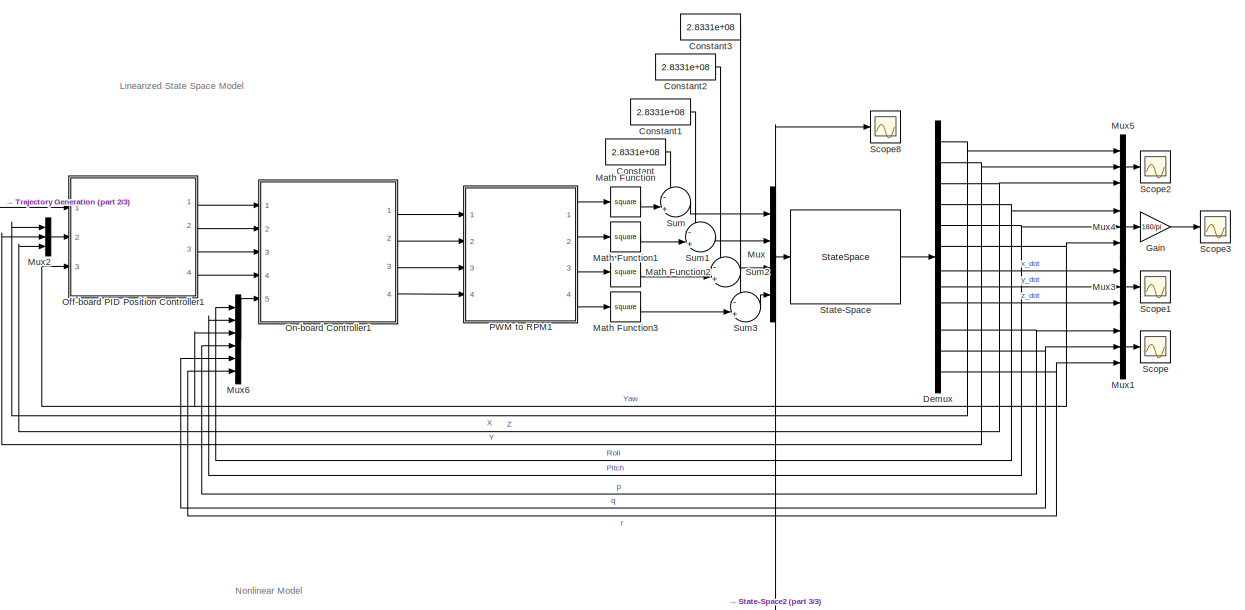
[diagram: root canvas - part 1/3, top center region]
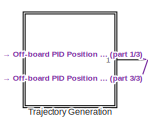
[diagram: root canvas - part 2/3, middle left region]
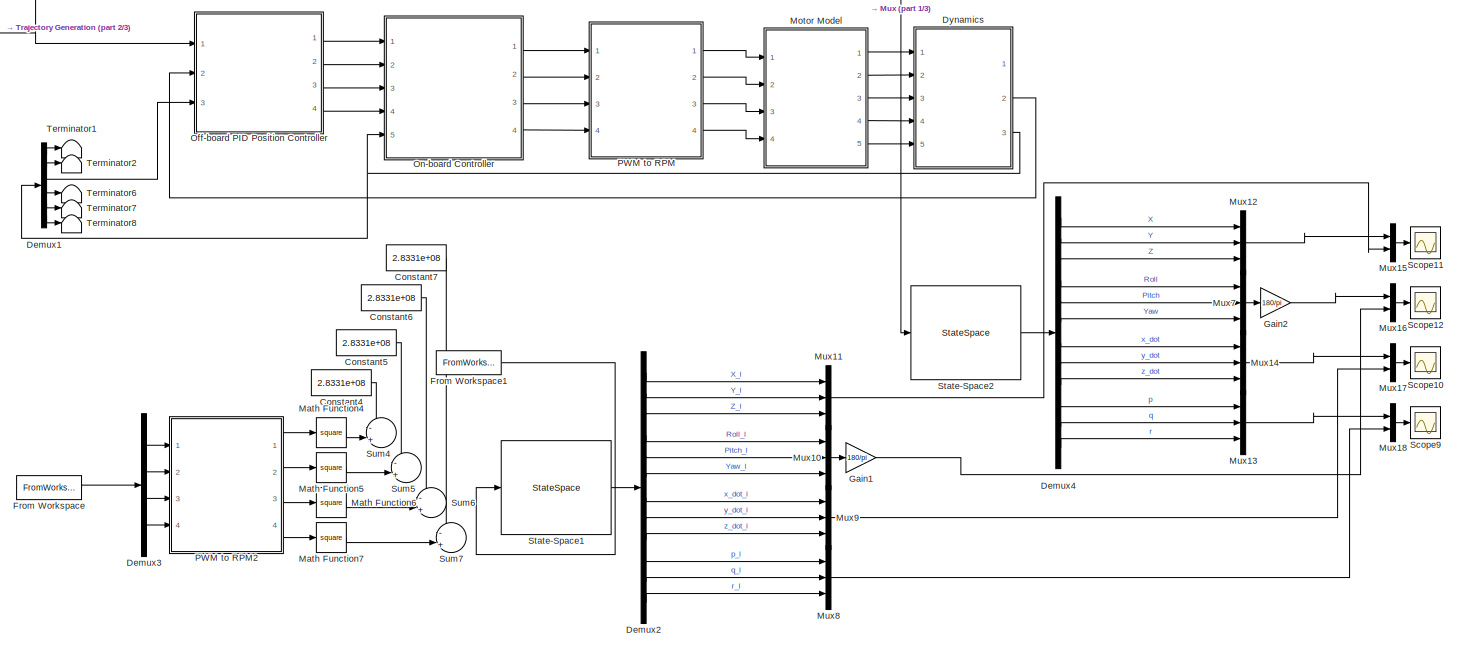
[diagram: root canvas - part 3/3, full width, bottom band]
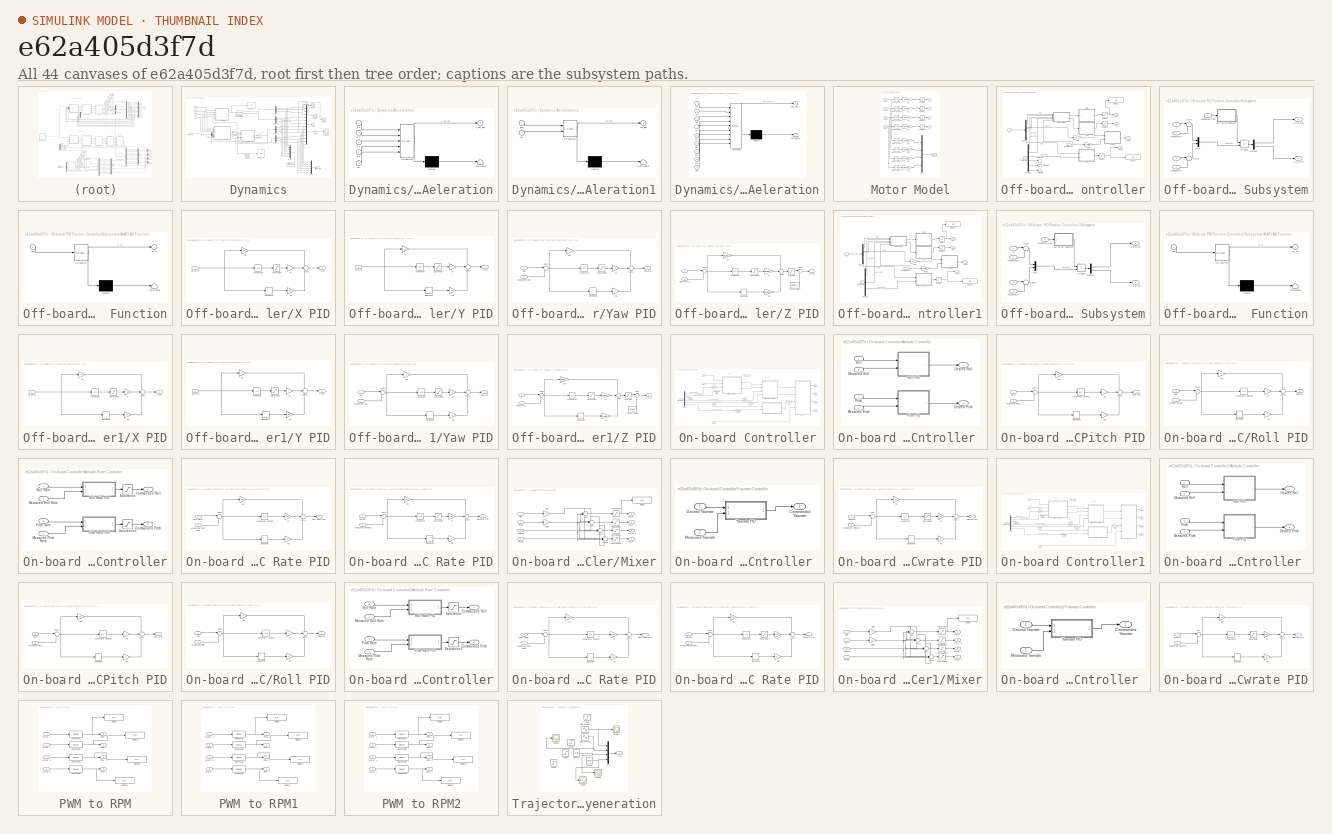
[diagram: thumbnail index - all 44 canvases of the model, root first then tree order]
MODEL slx_e62a405d3f7d
KIND model
CONFIG AbsTol = auto
CONFIG FixedStep = 1/500
CONFIG MaxStep = auto
CONFIG MinStep = 1e-4
CONFIG RelTol = 1e-3
CONFIG SampleTimeConstraint = Unconstrained
CONFIG Solver = ode3
CONFIG SolverMode = Auto
CONFIG SolverName = ode3
CONFIG StartTime = 0.0
CONFIG StopTime = 30
BLOCK [Constant] Constant
  Value = 2.8331e+08
BLOCK [Constant] Constant1
  Value = 2.8331e+08
BLOCK [Constant] Constant2
  Value = 2.8331e+08
BLOCK [Constant] Constant3
  Value = 2.8331e+08
BLOCK [Constant] Constant4
  Commented = on
  Value = 2.8331e+08
BLOCK [Constant] Constant5
  Commented = on
  Value = 2.8331e+08
BLOCK [Constant] Constant6
  Commented = on
  Value = 2.8331e+08
BLOCK [Constant] Constant7
  Commented = on
  Value = 2.8331e+08
BLOCK [Demux] Demux
  DisplayOption = bar
  Outputs = 12
  Ports = [1, 12]
BLOCK [Demux] Demux1
  DisplayOption = bar
  Outputs = 6
  Ports = [1, 6]
BLOCK [Demux] Demux2
  DisplayOption = bar
  Outputs = 12
  Ports = [1, 12]
BLOCK [Demux] Demux3
  Commented = on
  DisplayOption = bar
  Ports = [1, 4]
BLOCK [Demux] Demux4
  DisplayOption = bar
  Outputs = 12
  Ports = [1, 12]
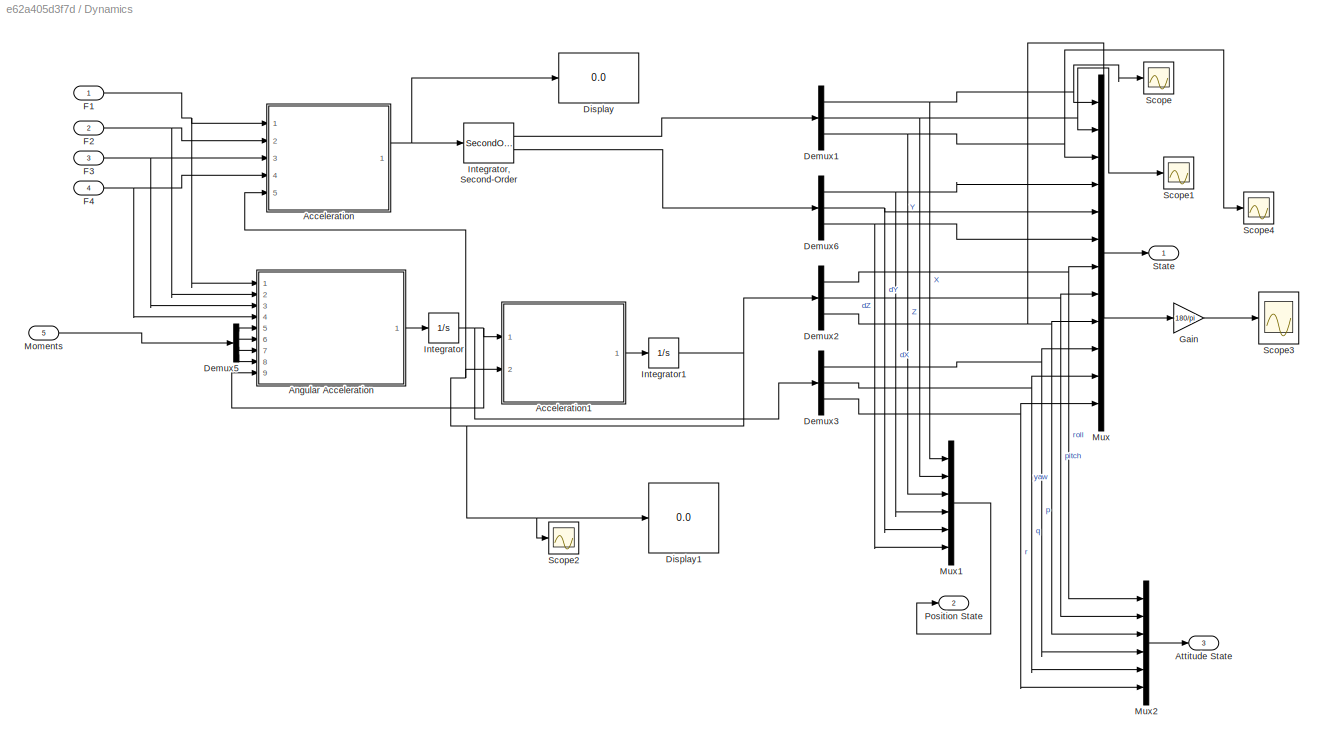
BLOCK [SubSystem] Dynamics
  Ports = [5, 3]
  RequestExecContextInheritance = off
  Variant = off
BLOCK [SubSystem] Dynamics/Acceleration
  ErrorFcn = Stateflow.Translate.translate
  PermitHierarchicalResolution = ParametersOnly
  Ports = [5, 1]
  RequestExecContextInheritance = off
  SFBlockType = MATLAB Function
  TreatAsAtomicUnit = on
  Variant = off
BLOCK [Demux] Dynamics/Acceleration/ Demux 
  Outputs = 1
  Ports = [1, 1]
BLOCK [S-Function] Dynamics/Acceleration/ SFunction 
  EnableBusSupport = on
  FunctionName = sf_sfun
  PortCounts = [5 2]
  Ports = [5, 2]
  SFunctionDeploymentMode = off
  Tag = Stateflow S-Function crazyflie_2015a 2
BLOCK [Terminator] Dynamics/Acceleration/ Terminator 
BLOCK [Inport] Dynamics/Acceleration/F1
  IconDisplay = Port number
BLOCK [Inport] Dynamics/Acceleration/F2
  IconDisplay = Port number
  Port = 2
BLOCK [Inport] Dynamics/Acceleration/F3
  IconDisplay = Port number
  Port = 3
BLOCK [Inport] Dynamics/Acceleration/F4
  IconDisplay = Port number
  Port = 4
BLOCK [Outport] Dynamics/Acceleration/r_dot_dot
  IconDisplay = Port number
BLOCK [Inport] Dynamics/Acceleration/rpy
  IconDisplay = Port number
  Port = 5
BLOCK [SubSystem] Dynamics/Acceleration1
  ErrorFcn = Stateflow.Translate.translate
  PermitHierarchicalResolution = ParametersOnly
  Ports = [2, 1]
  RequestExecContextInheritance = off
  SFBlockType = MATLAB Function
  TreatAsAtomicUnit = on
  Variant = off
BLOCK [Demux] Dynamics/Acceleration1/ Demux 
  Outputs = 1
  Ports = [1, 1]
BLOCK [S-Function] Dynamics/Acceleration1/ SFunction 
  EnableBusSupport = on
  FunctionName = sf_sfun
  PortCounts = [2 2]
  Ports = [2, 2]
  SFunctionDeploymentMode = off
  Tag = Stateflow S-Function crazyflie_2015a 3
BLOCK [Terminator] Dynamics/Acceleration1/ Terminator 
BLOCK [Inport] Dynamics/Acceleration1/pqr
  IconDisplay = Port number
BLOCK [Inport] Dynamics/Acceleration1/rpy
  IconDisplay = Port number
  Port = 2
BLOCK [Outport] Dynamics/Acceleration1/rpy_dot
  IconDisplay = Port number
BLOCK [SubSystem] Dynamics/Angular Acceleration
  ErrorFcn = Stateflow.Translate.translate
  PermitHierarchicalResolution = ParametersOnly
  Ports = [9, 1]
  RequestExecContextInheritance = off
  SFBlockType = MATLAB Function
  TreatAsAtomicUnit = on
  Variant = off
BLOCK [Demux] Dynamics/Angular Acceleration/ Demux 
  Outputs = 1
  Ports = [1, 1]
BLOCK [S-Function] Dynamics/Angular Acceleration/ SFunction 
  EnableBusSupport = on
  FunctionName = sf_sfun
  PortCounts = [9 2]
  Ports = [9, 2]
  SFunctionDeploymentMode = off
  Tag = Stateflow S-Function crazyflie_2015a 1
BLOCK [Terminator] Dynamics/Angular Acceleration/ Terminator 
BLOCK [Inport] Dynamics/Angular Acceleration/F1
  IconDisplay = Port number
BLOCK [Inport] Dynamics/Angular Acceleration/F2
  IconDisplay = Port number
  Port = 2
BLOCK [Inport] Dynamics/Angular Acceleration/F3
  IconDisplay = Port number
  Port = 3
BLOCK [Inport] Dynamics/Angular Acceleration/F4
  IconDisplay = Port number
  Port = 4
BLOCK [Inport] Dynamics/Angular Acceleration/M1
  IconDisplay = Port number
  Port = 5
BLOCK [Inport] Dynamics/Angular Acceleration/M2
  IconDisplay = Port number
  Port = 6
BLOCK [Inport] Dynamics/Angular Acceleration/M3
  IconDisplay = Port number
  Port = 7
BLOCK [Inport] Dynamics/Angular Acceleration/M4
  IconDisplay = Port number
  Port = 8
BLOCK [Inport] Dynamics/Angular Acceleration/pqr
  IconDisplay = Port number
  Port = 9
BLOCK [Outport] Dynamics/Angular Acceleration/pqr_dot_x
  IconDisplay = Port number
BLOCK [Outport] Dynamics/Attitude State
  IconDisplay = Port number
  Port = 3
BLOCK [Demux] Dynamics/Demux1
  DisplayOption = bar
  Outputs = 3
  Ports = [1, 3]
BLOCK [Demux] Dynamics/Demux2
  DisplayOption = bar
  Outputs = 3
  Ports = [1, 3]
BLOCK [Demux] Dynamics/Demux3
  DisplayOption = bar
  Outputs = 3
  Ports = [1, 3]
BLOCK [Demux] Dynamics/Demux5
  DisplayOption = bar
  Ports = [1, 4]
BLOCK [Demux] Dynamics/Demux6
  DisplayOption = bar
  Outputs = 3
  Ports = [1, 3]
BLOCK [Display] Dynamics/Display
  Decimation = 1
  Ports = [1]
BLOCK [Display] Dynamics/Display1
  Decimation = 1
  Ports = [1]
BLOCK [Inport] Dynamics/F1
  IconDisplay = Port number
BLOCK [Inport] Dynamics/F2
  IconDisplay = Port number
  Port = 2
BLOCK [Inport] Dynamics/F3
  IconDisplay = Port number
  Port = 3
BLOCK [Inport] Dynamics/F4
  IconDisplay = Port number
  Port = 4
BLOCK [Gain] Dynamics/Gain
  Gain = 180/pi
  OutDataTypeStr = Inherit: Inherit via internal rule
  ParamDataTypeStr = Inherit: Inherit via internal rule
  SaturateOnIntegerOverflow = off
BLOCK [Integrator] Dynamics/Integrator
  InitialCondition = [0;0;0]
  Ports = [1, 1]
BLOCK [SecondOrderIntegrator] Dynamics/Integrator, Second-Order
  ICDXDT = [0;0;0]
  ICX = [0;0;0]
  LimitDXDT = on
  LimitX = on
  LowerLimitDXDT = -Inf
  LowerLimitX = [-inf,-inf,0]
  Ports = [1, 2]
  StateNameDXDT = ['dx', 'dy', 'dz']
  StateNameX = ['x', 'y', 'z']
  UpperLimitDXDT = Inf
  UpperLimitX = [inf,inf,inf]
BLOCK [Integrator] Dynamics/Integrator1
  InitialCondition = [0;0;0]
  Ports = [1, 1]
BLOCK [Inport] Dynamics/Moments
  IconDisplay = Port number
  Port = 5
BLOCK [Mux] Dynamics/Mux
  DisplayOption = bar
  Inputs = 12
  Ports = [12, 1]
BLOCK [Mux] Dynamics/Mux1
  DisplayOption = bar
  Inputs = 6
  Ports = [6, 1]
BLOCK [Mux] Dynamics/Mux2
  DisplayOption = bar
  Inputs = 6
  Ports = [6, 1]
BLOCK [Outport] Dynamics/Position State
  IconDisplay = Port number
  Port = 2
BLOCK [Scope] Dynamics/Scope
  DataFormat = Array
  Decimation = 1
  Grid = on
  LimitDataPoints = off
  MaxDataPoints = 5000
  Ports = [1]
  SampleInput = off
  SampleTime = -1
  SaveName = x_pos
  SaveToWorkspace = on
  ShowLegends = off
  TickLabels = OneTimeTick
  TimeRange = auto
  YMax = 1.43792
  YMin = -0.15977
  ZoomMode = on
BLOCK [Scope] Dynamics/Scope1
  DataFormat = Array
  Decimation = 1
  Grid = on
  LimitDataPoints = off
  MaxDataPoints = 5000
  Ports = [1]
  SampleInput = off
  SampleTime = -1
  SaveName = y_pos
  SaveToWorkspace = on
  ShowLegends = off
  TickLabels = OneTimeTick
  TimeRange = auto
  YMax = 1.43948
  YMin = -0.15994
  ZoomMode = on
BLOCK [Scope] Dynamics/Scope2
  DataFormat = StructureWithTime
  Decimation = 1
  Grid = on
  LimitDataPoints = off
  MaxDataPoints = 5000
  Ports = [1]
  SampleInput = off
  SampleTime = -1
  SaveName = ScopeData1
  SaveToWorkspace = off
  ShowLegends = off
  TickLabels = OneTimeTick
  TimeRange = auto
  YMax = 0.00059
  YMin = -0.00075
  ZoomMode = on
BLOCK [Scope] Dynamics/Scope3
  DataFormat = Array
  Decimation = 1
  Grid = on
  LimitDataPoints = off
  MaxDataPoints = 5000
  Ports = [1]
  SampleInput = off
  SampleTime = -1
  SaveName = yaw_pos
  SaveToWorkspace = on
  ShowLegends = off
  TickLabels = OneTimeTick
  TimeRange = auto
  YMax = 67.89856
  YMin = -7.58141
  ZoomMode = on
BLOCK [Scope] Dynamics/Scope4
  DataFormat = Array
  Decimation = 1
  Grid = on
  LimitDataPoints = off
  MaxDataPoints = 5000
  Ports = [1]
  SampleInput = off
  SampleTime = -1
  SaveName = z_pos
  SaveToWorkspace = on
  ShowLegends = off
  TickLabels = OneTimeTick
  TimeRange = auto
  YMax = 1.5
  YMin = 0.00000
  ZoomMode = on
BLOCK [Outport] Dynamics/State
  IconDisplay = Port number
BLOCK [FromWorkspace] From Workspace
  Commented = on
  SampleTime = 1/500
  VariableName = Crazyflie_pwm1
  ZeroCross = on
BLOCK [FromWorkspace] From Workspace1
  VariableName = input
  ZeroCross = on
BLOCK [Gain] Gain
  Gain = 180/pi
  OutDataTypeStr = Inherit: Inherit via internal rule
  ParamDataTypeStr = Inherit: Inherit via internal rule
  SaturateOnIntegerOverflow = off
BLOCK [Gain] Gain1
  Gain = 180/pi
  OutDataTypeStr = Inherit: Inherit via internal rule
  ParamDataTypeStr = Inherit: Inherit via internal rule
  SaturateOnIntegerOverflow = off
BLOCK [Gain] Gain2
  Gain = 180/pi
  OutDataTypeStr = Inherit: Inherit via internal rule
  ParamDataTypeStr = Inherit: Inherit via internal rule
  SaturateOnIntegerOverflow = off
BLOCK [Math] Math Function
  Operator = square
  Ports = [1, 1]
BLOCK [Math] Math Function1
  Operator = square
  Ports = [1, 1]
BLOCK [Math] Math Function2
  Operator = square
  Ports = [1, 1]
BLOCK [Math] Math Function3
  Operator = square
  Ports = [1, 1]
BLOCK [Math] Math Function4
  Commented = on
  Operator = square
  Ports = [1, 1]
BLOCK [Math] Math Function5
  Commented = on
  Operator = square
  Ports = [1, 1]
BLOCK [Math] Math Function6
  Commented = on
  Operator = square
  Ports = [1, 1]
BLOCK [Math] Math Function7
  Commented = on
  Operator = square
  Ports = [1, 1]
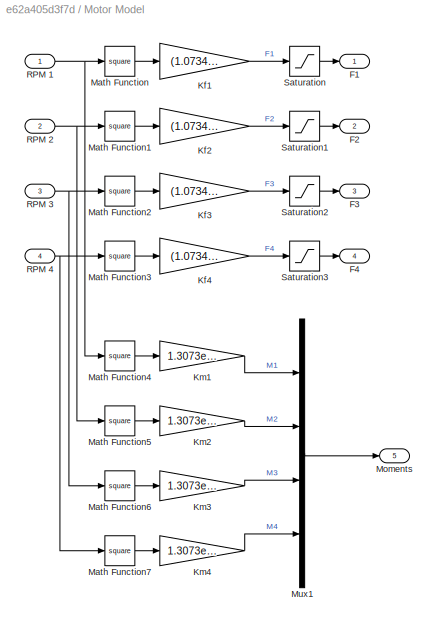
BLOCK [SubSystem] Motor Model
  Ports = [4, 5]
  RequestExecContextInheritance = off
  Variant = off
BLOCK [Outport] Motor Model/F1
  IconDisplay = Port number
BLOCK [Outport] Motor Model/F2
  IconDisplay = Port number
  Port = 2
BLOCK [Outport] Motor Model/F3
  IconDisplay = Port number
  Port = 3
BLOCK [Outport] Motor Model/F4
  IconDisplay = Port number
  Port = 4
BLOCK [Gain] Motor Model/Kf1
  Gain = (1.0734E-9)/4
  OutDataTypeStr = Inherit: Inherit via internal rule
  ParamDataTypeStr = Inherit: Inherit via internal rule
  SaturateOnIntegerOverflow = off
BLOCK [Gain] Motor Model/Kf2
  Gain = (1.0734E-9)/4
  OutDataTypeStr = Inherit: Inherit via internal rule
  ParamDataTypeStr = Inherit: Inherit via internal rule
  SaturateOnIntegerOverflow = off
BLOCK [Gain] Motor Model/Kf3
  Gain = (1.0734E-9)/4
  OutDataTypeStr = Inherit: Inherit via internal rule
  ParamDataTypeStr = Inherit: Inherit via internal rule
  SaturateOnIntegerOverflow = off
BLOCK [Gain] Motor Model/Kf4
  Gain = (1.0734E-9)/4
  OutDataTypeStr = Inherit: Inherit via internal rule
  ParamDataTypeStr = Inherit: Inherit via internal rule
  SaturateOnIntegerOverflow = off
BLOCK [Gain] Motor Model/Km1
  Gain = 1.3073e-10
  OutDataTypeStr = Inherit: Inherit via internal rule
  ParamDataTypeStr = Inherit: Inherit via internal rule
  SaturateOnIntegerOverflow = off
BLOCK [Gain] Motor Model/Km2
  Gain = 1.3073e-10
  OutDataTypeStr = Inherit: Inherit via internal rule
  ParamDataTypeStr = Inherit: Inherit via internal rule
  SaturateOnIntegerOverflow = off
BLOCK [Gain] Motor Model/Km3
  Gain = 1.3073e-10
  OutDataTypeStr = Inherit: Inherit via internal rule
  ParamDataTypeStr = Inherit: Inherit via internal rule
  SaturateOnIntegerOverflow = off
BLOCK [Gain] Motor Model/Km4
  Gain = 1.3073e-10
  OutDataTypeStr = Inherit: Inherit via internal rule
  ParamDataTypeStr = Inherit: Inherit via internal rule
  SaturateOnIntegerOverflow = off
BLOCK [Math] Motor Model/Math Function
  Operator = square
  Ports = [1, 1]
BLOCK [Math] Motor Model/Math Function1
  Operator = square
  Ports = [1, 1]
BLOCK [Math] Motor Model/Math Function2
  Operator = square
  Ports = [1, 1]
BLOCK [Math] Motor Model/Math Function3
  Operator = square
  Ports = [1, 1]
BLOCK [Math] Motor Model/Math Function4
  Operator = square
  Ports = [1, 1]
BLOCK [Math] Motor Model/Math Function5
  Operator = square
  Ports = [1, 1]
BLOCK [Math] Motor Model/Math Function6
  Operator = square
  Ports = [1, 1]
BLOCK [Math] Motor Model/Math Function7
  Operator = square
  Ports = [1, 1]
BLOCK [Outport] Motor Model/Moments
  IconDisplay = Port number
  Port = 5
BLOCK [Mux] Motor Model/Mux1
  DisplayOption = bar
  Ports = [4, 1]
BLOCK [Inport] Motor Model/RPM 1
  IconDisplay = Port number
BLOCK [Inport] Motor Model/RPM 2
  IconDisplay = Port number
  Port = 2
BLOCK [Inport] Motor Model/RPM 3
  IconDisplay = Port number
  Port = 3
BLOCK [Inport] Motor Model/RPM 4
  IconDisplay = Port number
  Port = 4
BLOCK [Saturate] Motor Model/Saturation
  InputPortMap = u0
  LowerLimit = 0
  Ports = [1, 1]
  UpperLimit = .2
BLOCK [Saturate] Motor Model/Saturation1
  InputPortMap = u0
  LowerLimit = 0
  Ports = [1, 1]
  UpperLimit = .2
BLOCK [Saturate] Motor Model/Saturation2
  InputPortMap = u0
  LowerLimit = 0
  Ports = [1, 1]
  UpperLimit = .2
BLOCK [Saturate] Motor Model/Saturation3
  InputPortMap = u0
  LowerLimit = 0
  Ports = [1, 1]
  UpperLimit = .2
BLOCK [Mux] Mux
  DisplayOption = bar
  Ports = [4, 1]
BLOCK [Mux] Mux1
  DisplayOption = bar
  Inputs = 3
  Ports = [3, 1]
BLOCK [Mux] Mux10
  DisplayOption = bar
  Inputs = 3
  Ports = [3, 1]
BLOCK [Mux] Mux11
  DisplayOption = bar
  Inputs = 3
  Ports = [3, 1]
BLOCK [Mux] Mux12
  DisplayOption = bar
  Inputs = 3
  Ports = [3, 1]
BLOCK [Mux] Mux13
  DisplayOption = bar
  Inputs = 3
  Ports = [3, 1]
BLOCK [Mux] Mux14
  DisplayOption = bar
  Inputs = 3
  Ports = [3, 1]
BLOCK [Mux] Mux15
  DisplayOption = bar
  Inputs = 2
  Ports = [2, 1]
BLOCK [Mux] Mux16
  DisplayOption = bar
  Inputs = 2
  Ports = [2, 1]
BLOCK [Mux] Mux17
  DisplayOption = bar
  Inputs = 2
  Ports = [2, 1]
BLOCK [Mux] Mux18
  DisplayOption = bar
  Inputs = 2
  Ports = [2, 1]
BLOCK [Mux] Mux2
  DisplayOption = bar
  Inputs = 3
  Ports = [3, 1]
BLOCK [Mux] Mux3
  DisplayOption = bar
  Inputs = 3
  Ports = [3, 1]
BLOCK [Mux] Mux4
  DisplayOption = bar
  Inputs = 3
  Ports = [3, 1]
BLOCK [Mux] Mux5
  DisplayOption = bar
  Inputs = 3
  Ports = [3, 1]
BLOCK [Mux] Mux6
  DisplayOption = bar
  Inputs = 6
  Ports = [6, 1]
BLOCK [Mux] Mux7
  DisplayOption = bar
  Inputs = 3
  Ports = [3, 1]
BLOCK [Mux] Mux8
  DisplayOption = bar
  Inputs = 3
  Ports = [3, 1]
BLOCK [Mux] Mux9
  DisplayOption = bar
  Inputs = 3
  Ports = [3, 1]
BLOCK [SubSystem] Off-board PID Position Controller
  Ports = [3, 4]
  RequestExecContextInheritance = off
  Variant = off
BLOCK [Demux] Off-board PID Position Controller/Demux
  DisplayOption = bar
  Ports = [1, 4]
BLOCK [Demux] Off-board PID Position Controller/Demux1
  DisplayOption = bar
  Outputs = 6
  Ports = [1, 6]
BLOCK [Display] Off-board PID Position Controller/Display
  Decimation = 1
  Ports = [1]
BLOCK [Display] Off-board PID Position Controller/Display1
  Decimation = 1
  Ports = [1]
BLOCK [Gain] Off-board PID Position Controller/Gain
  OutDataTypeStr = Inherit: Inherit via internal rule
  ParamDataTypeStr = Inherit: Inherit via internal rule
  SaturateOnIntegerOverflow = off
BLOCK [Gain] Off-board PID Position Controller/Gain1
  Gain = 180/pi
  OutDataTypeStr = Inherit: Inherit via internal rule
  ParamDataTypeStr = Inherit: Inherit via internal rule
  SaturateOnIntegerOverflow = off
BLOCK [Inport] Off-board PID Position Controller/Meaured Yaw
  IconDisplay = Port number
  Port = 3
BLOCK [Outport] Off-board PID Position Controller/Pitch
  IconDisplay = Port number
  Port = 2
BLOCK [Inport] Off-board PID Position Controller/Position State
  IconDisplay = Port number
  Port = 2
BLOCK [Outport] Off-board PID Position Controller/Roll
  IconDisplay = Port number
BLOCK [Saturate] Off-board PID Position Controller/Saturation
  InputPortMap = u0
  LowerLimit = 1000
  Ports = [1, 1]
  UpperLimit = 60000
BLOCK [Saturate] Off-board PID Position Controller/Saturation1
  InputPortMap = u0
  LowerLimit = -30
  Ports = [1, 1]
  UpperLimit = 30
BLOCK [Saturate] Off-board PID Position Controller/Saturation2
  InputPortMap = u0
  LowerLimit = -30
  Ports = [1, 1]
  UpperLimit = 30
BLOCK [SubSystem] Off-board PID Position Controller/Subsystem
  Ports = [5, 2]
  RequestExecContextInheritance = off
  Variant = off
BLOCK [Demux] Off-board PID Position Controller/Subsystem/Demux
  DisplayOption = bar
  Outputs = 2
  Ports = [1, 2]
BLOCK [SubSystem] Off-board PID Position Controller/Subsystem/MATLAB Function
  ErrorFcn = Stateflow.Translate.translate
  PermitHierarchicalResolution = ParametersOnly
  Ports = [1, 1]
  RequestExecContextInheritance = off
  SFBlockType = MATLAB Function
  TreatAsAtomicUnit = on
  Variant = off
BLOCK [Demux] Off-board PID Position Controller/Subsystem/MATLAB Function/ Demux 
  Outputs = 1
  Ports = [1, 1]
BLOCK [S-Function] Off-board PID Position Controller/Subsystem/MATLAB Function/ SFunction 
  EnableBusSupport = on
  FunctionName = sf_sfun
  PortCounts = [1 2]
  Ports = [1, 2]
  SFunctionDeploymentMode = off
  Tag = Stateflow S-Function crazyflie_2015a 4
BLOCK [Terminator] Off-board PID Position Controller/Subsystem/MATLAB Function/ Terminator 
BLOCK [Outport] Off-board PID Position Controller/Subsystem/MATLAB Function/R_m
  IconDisplay = Port number
BLOCK [Inport] Off-board PID Position Controller/Subsystem/MATLAB Function/yaw
  IconDisplay = Port number
BLOCK [Inport] Off-board PID Position Controller/Subsystem/Measured X
  IconDisplay = Port number
  Port = 2
BLOCK [Inport] Off-board PID Position Controller/Subsystem/Measured Y
  IconDisplay = Port number
  Port = 4
BLOCK [Inport] Off-board PID Position Controller/Subsystem/Measured Yaw
  IconDisplay = Port number
  Port = 5
BLOCK [Mux] Off-board PID Position Controller/Subsystem/Mux
  DisplayOption = bar
  Inputs = 2
  Ports = [2, 1]
BLOCK [Product] Off-board PID Position Controller/Subsystem/Product
  InputSameDT = off
  Multiplication = Matrix(*)
  OutDataTypeStr = Inherit: Inherit via internal rule
  Ports = [2, 1]
  RndMeth = Floor
  SaturateOnIntegerOverflow = off
BLOCK [Sum] Off-board PID Position Controller/Subsystem/Sum
  IconShape = round
  InputSameDT = off
  Inputs = |+-
  OutDataTypeStr = Inherit: Inherit via internal rule
  Ports = [2, 1]
  SaturateOnIntegerOverflow = off
BLOCK [Sum] Off-board PID Position Controller/Subsystem/Sum1
  IconShape = round
  InputSameDT = off
  Inputs = |+-
  OutDataTypeStr = Inherit: Inherit via internal rule
  Ports = [2, 1]
  SaturateOnIntegerOverflow = off
BLOCK [Inport] Off-board PID Position Controller/Subsystem/X
  IconDisplay = Port number
BLOCK [Outport] Off-board PID Position Controller/Subsystem/Xb Error
  IconDisplay = Port number
BLOCK [Inport] Off-board PID Position Controller/Subsystem/Y
  IconDisplay = Port number
  Port = 3
BLOCK [Outport] Off-board PID Position Controller/Subsystem/Yb Error
  IconDisplay = Port number
  Port = 2
BLOCK [Terminator] Off-board PID Position Controller/Terminator
BLOCK [Terminator] Off-board PID Position Controller/Terminator1
BLOCK [Terminator] Off-board PID Position Controller/Terminator2
BLOCK [Outport] Off-board PID Position Controller/Thrust
  IconDisplay = Port number
  Port = 4
BLOCK [Inport] Off-board PID Position Controller/Traj
  IconDisplay = Port number
BLOCK [SubSystem] Off-board PID Position Controller/X PID
  Ports = [1, 1]
  RequestExecContextInheritance = off
  Variant = off
BLOCK [Derivative] Off-board PID Position Controller/X PID/Derivative
BLOCK [Integrator] Off-board PID Position Controller/X PID/Integrator
  Ports = [1, 1]
BLOCK [Gain] Off-board PID Position Controller/X PID/Kd
  Gain = 10
  OutDataTypeStr = Inherit: Inherit via internal rule
  ParamDataTypeStr = Inherit: Inherit via internal rule
  SaturateOnIntegerOverflow = off
BLOCK [Gain] Off-board PID Position Controller/X PID/Ki
  Gain = 4
  OutDataTypeStr = Inherit: Inherit via internal rule
  ParamDataTypeStr = Inherit: Inherit via internal rule
  SaturateOnIntegerOverflow = off
BLOCK [Gain] Off-board PID Position Controller/X PID/Kp
  Gain = 18
  OutDataTypeStr = Inherit: Inherit via internal rule
  ParamDataTypeStr = Inherit: Inherit via internal rule
  SaturateOnIntegerOverflow = off
BLOCK [Saturate] Off-board PID Position Controller/X PID/Saturation
  InputPortMap = u0
  LowerLimit = -.2
  Ports = [1, 1]
  UpperLimit = .2
BLOCK [Sum] Off-board PID Position Controller/X PID/Sum3
  IconShape = round
  InputSameDT = off
  Inputs = +++
  OutDataTypeStr = Inherit: Inherit via internal rule
  Ports = [3, 1]
  SaturateOnIntegerOverflow = off
BLOCK [Outport] Off-board PID Position Controller/X PID/X PID
  IconDisplay = Port number
BLOCK [Inport] Off-board PID Position Controller/X PID/Xb Error
  IconDisplay = Port number
BLOCK [SubSystem] Off-board PID Position Controller/Y PID
  Ports = [1, 1]
  RequestExecContextInheritance = off
  Variant = off
BLOCK [Derivative] Off-board PID Position Controller/Y PID/Derivative
BLOCK [Integrator] Off-board PID Position Controller/Y PID/Integrator
  Ports = [1, 1]
BLOCK [Gain] Off-board PID Position Controller/Y PID/Kd
  Gain = 10
  OutDataTypeStr = Inherit: Inherit via internal rule
  ParamDataTypeStr = Inherit: Inherit via internal rule
  SaturateOnIntegerOverflow = off
BLOCK [Gain] Off-board PID Position Controller/Y PID/Ki
  Gain = 4
  OutDataTypeStr = Inherit: Inherit via internal rule
  ParamDataTypeStr = Inherit: Inherit via internal rule
  SaturateOnIntegerOverflow = off
BLOCK [Gain] Off-board PID Position Controller/Y PID/Kp
  Gain = 18
  OutDataTypeStr = Inherit: Inherit via internal rule
  ParamDataTypeStr = Inherit: Inherit via internal rule
  SaturateOnIntegerOverflow = off
BLOCK [Saturate] Off-board PID Position Controller/Y PID/Saturation
  InputPortMap = u0
  LowerLimit = -.2
  Ports = [1, 1]
  UpperLimit = .2
BLOCK [Sum] Off-board PID Position Controller/Y PID/Sum3
  IconShape = round
  InputSameDT = off
  Inputs = +++
  OutDataTypeStr = Inherit: Inherit via internal rule
  Ports = [3, 1]
  SaturateOnIntegerOverflow = off
BLOCK [Outport] Off-board PID Position Controller/Y PID/Y PID
  IconDisplay = Port number
BLOCK [Inport] Off-board PID Position Controller/Y PID/Yb Error
  IconDisplay = Port number
BLOCK [SubSystem] Off-board PID Position Controller/Yaw PID
  Ports = [2, 1]
  RequestExecContextInheritance = off
  Variant = off
BLOCK [Derivative] Off-board PID Position Controller/Yaw PID/Derivative
BLOCK [Integrator] Off-board PID Position Controller/Yaw PID/Integrator
  Ports = [1, 1]
BLOCK [Gain] Off-board PID Position Controller/Yaw PID/Kd
  OutDataTypeStr = Inherit: Inherit via internal rule
  ParamDataTypeStr = Inherit: Inherit via internal rule
  SaturateOnIntegerOverflow = off
BLOCK [Gain] Off-board PID Position Controller/Yaw PID/Ki
  Gain = 0
  OutDataTypeStr = Inherit: Inherit via internal rule
  ParamDataTypeStr = Inherit: Inherit via internal rule
  SaturateOnIntegerOverflow = off
BLOCK [Gain] Off-board PID Position Controller/Yaw PID/Kp
  Gain = 3
  OutDataTypeStr = Inherit: Inherit via internal rule
  ParamDataTypeStr = Inherit: Inherit via internal rule
  SaturateOnIntegerOverflow = off
BLOCK [Inport] Off-board PID Position Controller/Yaw PID/Measured Yaw
  IconDisplay = Port number
  Port = 2
BLOCK [Saturate] Off-board PID Position Controller/Yaw PID/Saturation
  InputPortMap = u0
  LowerLimit = -.2
  Ports = [1, 1]
  UpperLimit = .2
BLOCK [Sum] Off-board PID Position Controller/Yaw PID/Sum2
  IconShape = round
  InputSameDT = off
  Inputs = |+-
  OutDataTypeStr = Inherit: Inherit via internal rule
  Ports = [2, 1]
  SaturateOnIntegerOverflow = off
BLOCK [Sum] Off-board PID Position Controller/Yaw PID/Sum3
  IconShape = round
  InputSameDT = off
  Inputs = +++
  OutDataTypeStr = Inherit: Inherit via internal rule
  Ports = [3, 1]
  SaturateOnIntegerOverflow = off
BLOCK [Inport] Off-board PID Position Controller/Yaw PID/Yaw
  IconDisplay = Port number
BLOCK [Outport] Off-board PID Position Controller/Yaw PID/Yaw PID
  IconDisplay = Port number
BLOCK [Outport] Off-board PID Position Controller/Yawrate
  IconDisplay = Port number
  Port = 3
BLOCK [SubSystem] Off-board PID Position Controller/Z PID
  Ports = [2, 1]
  RequestExecContextInheritance = off
  Variant = off
BLOCK [Derivative] Off-board PID Position Controller/Z PID/Derivative
BLOCK [Integrator] Off-board PID Position Controller/Z PID/Integrator
  Ports = [1, 1]
BLOCK [Gain] Off-board PID Position Controller/Z PID/Kd
  Gain = 40000
  OutDataTypeStr = Inherit: Inherit via internal rule
  ParamDataTypeStr = Inherit: Inherit via internal rule
  SaturateOnIntegerOverflow = off
BLOCK [Gain] Off-board PID Position Controller/Z PID/Ki
  Gain = 10000
  OutDataTypeStr = Inherit: Inherit via internal rule
  ParamDataTypeStr = Inherit: Inherit via internal rule
  SaturateOnIntegerOverflow = off
BLOCK [Gain] Off-board PID Position Controller/Z PID/Kp
  Gain = 50000
  OutDataTypeStr = Inherit: Inherit via internal rule
  ParamDataTypeStr = Inherit: Inherit via internal rule
  SaturateOnIntegerOverflow = off
BLOCK [Inport] Off-board PID Position Controller/Z PID/Measured Z
  IconDisplay = Port number
  Port = 2
BLOCK [Saturate] Off-board PID Position Controller/Z PID/PID Limit
  InputPortMap = u0
  LowerLimit = -25000
  Ports = [1, 1]
  UpperLimit = 25000
BLOCK [Saturate] Off-board PID Position Controller/Z PID/Saturation
  InputPortMap = u0
  LowerLimit = -10
  Ports = [1, 1]
  UpperLimit = 10
BLOCK [Sum] Off-board PID Position Controller/Z PID/Sum
  IconShape = round
  InputSameDT = off
  Inputs = |++
  OutDataTypeStr = Inherit: Inherit via internal rule
  Ports = [2, 1]
  SaturateOnIntegerOverflow = off
BLOCK [Sum] Off-board PID Position Controller/Z PID/Sum2
  IconShape = round
  InputSameDT = off
  Inputs = |+-
  OutDataTypeStr = Inherit: Inherit via internal rule
  Ports = [2, 1]
  SaturateOnIntegerOverflow = off
BLOCK [Sum] Off-board PID Position Controller/Z PID/Sum3
  IconShape = round
  InputSameDT = off
  Inputs = +++
  OutDataTypeStr = Inherit: Inherit via internal rule
  Ports = [3, 1]
  SaturateOnIntegerOverflow = off
BLOCK [Constant] Off-board PID Position Controller/Z PID/Thrust Base
  Value = 35125.3
BLOCK [Inport] Off-board PID Position Controller/Z PID/Z
  IconDisplay = Port number
BLOCK [Outport] Off-board PID Position Controller/Z PID/Z PID
  IconDisplay = Port number
BLOCK [SubSystem] Off-board PID Position Controller1
  Ports = [3, 4]
  RequestExecContextInheritance = off
  Variant = off
BLOCK [Demux] Off-board PID Position Controller1/Demux
  DisplayOption = bar
  Ports = [1, 4]
BLOCK [Demux] Off-board PID Position Controller1/Demux1
  DisplayOption = bar
  Outputs = 3
  Ports = [1, 3]
BLOCK [Display] Off-board PID Position Controller1/Display
  Decimation = 1
  Ports = [1]
BLOCK [Display] Off-board PID Position Controller1/Display1
  Decimation = 1
  Ports = [1]
BLOCK [Gain] Off-board PID Position Controller1/Gain
  OutDataTypeStr = Inherit: Inherit via internal rule
  ParamDataTypeStr = Inherit: Inherit via internal rule
  SaturateOnIntegerOverflow = off
BLOCK [Gain] Off-board PID Position Controller1/Gain1
  Gain = 180/pi
  OutDataTypeStr = Inherit: Inherit via internal rule
  ParamDataTypeStr = Inherit: Inherit via internal rule
  SaturateOnIntegerOverflow = off
BLOCK [Inport] Off-board PID Position Controller1/Meaured Yaw
  IconDisplay = Port number
  Port = 3
BLOCK [Outport] Off-board PID Position Controller1/Pitch
  IconDisplay = Port number
  Port = 2
BLOCK [Inport] Off-board PID Position Controller1/Position State
  IconDisplay = Port number
  Port = 2
BLOCK [Outport] Off-board PID Position Controller1/Roll
  IconDisplay = Port number
BLOCK [Saturate] Off-board PID Position Controller1/Saturation
  InputPortMap = u0
  LowerLimit = 1000
  Ports = [1, 1]
  UpperLimit = 60000
BLOCK [Saturate] Off-board PID Position Controller1/Saturation1
  InputPortMap = u0
  LowerLimit = -30
  Ports = [1, 1]
  UpperLimit = 30
BLOCK [Saturate] Off-board PID Position Controller1/Saturation2
  InputPortMap = u0
  LowerLimit = -30
  Ports = [1, 1]
  UpperLimit = 30
BLOCK [SubSystem] Off-board PID Position Controller1/Subsystem
  Ports = [5, 2]
  RequestExecContextInheritance = off
  Variant = off
BLOCK [Demux] Off-board PID Position Controller1/Subsystem/Demux
  DisplayOption = bar
  Outputs = 2
  Ports = [1, 2]
BLOCK [SubSystem] Off-board PID Position Controller1/Subsystem/MATLAB Function
  ErrorFcn = Stateflow.Translate.translate
  PermitHierarchicalResolution = ParametersOnly
  Ports = [1, 1]
  RequestExecContextInheritance = off
  SFBlockType = MATLAB Function
  TreatAsAtomicUnit = on
  Variant = off
BLOCK [Demux] Off-board PID Position Controller1/Subsystem/MATLAB Function/ Demux 
  Outputs = 1
  Ports = [1, 1]
BLOCK [S-Function] Off-board PID Position Controller1/Subsystem/MATLAB Function/ SFunction 
  EnableBusSupport = on
  FunctionName = sf_sfun
  PortCounts = [1 2]
  Ports = [1, 2]
  SFunctionDeploymentMode = off
  Tag = Stateflow S-Function crazyflie_2015a 5
BLOCK [Terminator] Off-board PID Position Controller1/Subsystem/MATLAB Function/ Terminator 
BLOCK [Outport] Off-board PID Position Controller1/Subsystem/MATLAB Function/R_m
  IconDisplay = Port number
BLOCK [Inport] Off-board PID Position Controller1/Subsystem/MATLAB Function/yaw
  IconDisplay = Port number
BLOCK [Inport] Off-board PID Position Controller1/Subsystem/Measured X
  IconDisplay = Port number
  Port = 2
BLOCK [Inport] Off-board PID Position Controller1/Subsystem/Measured Y
  IconDisplay = Port number
  Port = 4
BLOCK [Inport] Off-board PID Position Controller1/Subsystem/Measured Yaw
  IconDisplay = Port number
  Port = 5
BLOCK [Mux] Off-board PID Position Controller1/Subsystem/Mux
  DisplayOption = bar
  Inputs = 2
  Ports = [2, 1]
BLOCK [Product] Off-board PID Position Controller1/Subsystem/Product
  InputSameDT = off
  Multiplication = Matrix(*)
  OutDataTypeStr = Inherit: Inherit via internal rule
  Ports = [2, 1]
  RndMeth = Floor
  SaturateOnIntegerOverflow = off
BLOCK [Sum] Off-board PID Position Controller1/Subsystem/Sum
  IconShape = round
  InputSameDT = off
  Inputs = |+-
  OutDataTypeStr = Inherit: Inherit via internal rule
  Ports = [2, 1]
  SaturateOnIntegerOverflow = off
BLOCK [Sum] Off-board PID Position Controller1/Subsystem/Sum1
  IconShape = round
  InputSameDT = off
  Inputs = |+-
  OutDataTypeStr = Inherit: Inherit via internal rule
  Ports = [2, 1]
  SaturateOnIntegerOverflow = off
BLOCK [Inport] Off-board PID Position Controller1/Subsystem/X
  IconDisplay = Port number
BLOCK [Outport] Off-board PID Position Controller1/Subsystem/Xb Error
  IconDisplay = Port number
BLOCK [Inport] Off-board PID Position Controller1/Subsystem/Y
  IconDisplay = Port number
  Port = 3
BLOCK [Outport] Off-board PID Position Controller1/Subsystem/Yb Error
  IconDisplay = Port number
  Port = 2
BLOCK [Outport] Off-board PID Position Controller1/Thrust
  IconDisplay = Port number
  Port = 4
BLOCK [Inport] Off-board PID Position Controller1/Traj
  IconDisplay = Port number
BLOCK [SubSystem] Off-board PID Position Controller1/X PID
  Ports = [1, 1]
  RequestExecContextInheritance = off
  Variant = off
BLOCK [Derivative] Off-board PID Position Controller1/X PID/Derivative
BLOCK [Integrator] Off-board PID Position Controller1/X PID/Integrator
  Ports = [1, 1]
BLOCK [Gain] Off-board PID Position Controller1/X PID/Kd
  Gain = 10
  OutDataTypeStr = Inherit: Inherit via internal rule
  ParamDataTypeStr = Inherit: Inherit via internal rule
  SaturateOnIntegerOverflow = off
BLOCK [Gain] Off-board PID Position Controller1/X PID/Ki
  Gain = 4
  OutDataTypeStr = Inherit: Inherit via internal rule
  ParamDataTypeStr = Inherit: Inherit via internal rule
  SaturateOnIntegerOverflow = off
BLOCK [Gain] Off-board PID Position Controller1/X PID/Kp
  Gain = 18
  OutDataTypeStr = Inherit: Inherit via internal rule
  ParamDataTypeStr = Inherit: Inherit via internal rule
  SaturateOnIntegerOverflow = off
BLOCK [Saturate] Off-board PID Position Controller1/X PID/Saturation
  InputPortMap = u0
  LowerLimit = -.2
  Ports = [1, 1]
  UpperLimit = .2
BLOCK [Sum] Off-board PID Position Controller1/X PID/Sum3
  IconShape = round
  InputSameDT = off
  Inputs = +++
  OutDataTypeStr = Inherit: Inherit via internal rule
  Ports = [3, 1]
  SaturateOnIntegerOverflow = off
BLOCK [Outport] Off-board PID Position Controller1/X PID/X PID
  IconDisplay = Port number
BLOCK [Inport] Off-board PID Position Controller1/X PID/Xb Error
  IconDisplay = Port number
BLOCK [SubSystem] Off-board PID Position Controller1/Y PID
  Ports = [1, 1]
  RequestExecContextInheritance = off
  Variant = off
BLOCK [Derivative] Off-board PID Position Controller1/Y PID/Derivative
BLOCK [Integrator] Off-board PID Position Controller1/Y PID/Integrator
  Ports = [1, 1]
BLOCK [Gain] Off-board PID Position Controller1/Y PID/Kd
  Gain = 10
  OutDataTypeStr = Inherit: Inherit via internal rule
  ParamDataTypeStr = Inherit: Inherit via internal rule
  SaturateOnIntegerOverflow = off
BLOCK [Gain] Off-board PID Position Controller1/Y PID/Ki
  Gain = 4
  OutDataTypeStr = Inherit: Inherit via internal rule
  ParamDataTypeStr = Inherit: Inherit via internal rule
  SaturateOnIntegerOverflow = off
BLOCK [Gain] Off-board PID Position Controller1/Y PID/Kp
  Gain = 18
  OutDataTypeStr = Inherit: Inherit via internal rule
  ParamDataTypeStr = Inherit: Inherit via internal rule
  SaturateOnIntegerOverflow = off
BLOCK [Saturate] Off-board PID Position Controller1/Y PID/Saturation
  InputPortMap = u0
  LowerLimit = -.2
  Ports = [1, 1]
  UpperLimit = .2
BLOCK [Sum] Off-board PID Position Controller1/Y PID/Sum3
  IconShape = round
  InputSameDT = off
  Inputs = +++
  OutDataTypeStr = Inherit: Inherit via internal rule
  Ports = [3, 1]
  SaturateOnIntegerOverflow = off
BLOCK [Outport] Off-board PID Position Controller1/Y PID/Y PID
  IconDisplay = Port number
BLOCK [Inport] Off-board PID Position Controller1/Y PID/Yb Error
  IconDisplay = Port number
BLOCK [SubSystem] Off-board PID Position Controller1/Yaw PID
  Ports = [2, 1]
  RequestExecContextInheritance = off
  Variant = off
BLOCK [Derivative] Off-board PID Position Controller1/Yaw PID/Derivative
BLOCK [Integrator] Off-board PID Position Controller1/Yaw PID/Integrator
  Ports = [1, 1]
BLOCK [Gain] Off-board PID Position Controller1/Yaw PID/Kd
  OutDataTypeStr = Inherit: Inherit via internal rule
  ParamDataTypeStr = Inherit: Inherit via internal rule
  SaturateOnIntegerOverflow = off
BLOCK [Gain] Off-board PID Position Controller1/Yaw PID/Ki
  Gain = 0
  OutDataTypeStr = Inherit: Inherit via internal rule
  ParamDataTypeStr = Inherit: Inherit via internal rule
  SaturateOnIntegerOverflow = off
BLOCK [Gain] Off-board PID Position Controller1/Yaw PID/Kp
  Gain = 3
  OutDataTypeStr = Inherit: Inherit via internal rule
  ParamDataTypeStr = Inherit: Inherit via internal rule
  SaturateOnIntegerOverflow = off
BLOCK [Inport] Off-board PID Position Controller1/Yaw PID/Measured Yaw
  IconDisplay = Port number
  Port = 2
BLOCK [Saturate] Off-board PID Position Controller1/Yaw PID/Saturation
  InputPortMap = u0
  LowerLimit = -.2
  Ports = [1, 1]
  UpperLimit = .2
BLOCK [Sum] Off-board PID Position Controller1/Yaw PID/Sum2
  IconShape = round
  InputSameDT = off
  Inputs = |+-
  OutDataTypeStr = Inherit: Inherit via internal rule
  Ports = [2, 1]
  SaturateOnIntegerOverflow = off
BLOCK [Sum] Off-board PID Position Controller1/Yaw PID/Sum3
  IconShape = round
  InputSameDT = off
  Inputs = +++
  OutDataTypeStr = Inherit: Inherit via internal rule
  Ports = [3, 1]
  SaturateOnIntegerOverflow = off
BLOCK [Inport] Off-board PID Position Controller1/Yaw PID/Yaw
  IconDisplay = Port number
BLOCK [Outport] Off-board PID Position Controller1/Yaw PID/Yaw PID
  IconDisplay = Port number
BLOCK [Outport] Off-board PID Position Controller1/Yawrate
  IconDisplay = Port number
  Port = 3
BLOCK [SubSystem] Off-board PID Position Controller1/Z PID
  Ports = [2, 1]
  RequestExecContextInheritance = off
  Variant = off
BLOCK [Derivative] Off-board PID Position Controller1/Z PID/Derivative
BLOCK [Integrator] Off-board PID Position Controller1/Z PID/Integrator
  Ports = [1, 1]
BLOCK [Gain] Off-board PID Position Controller1/Z PID/Kd
  Gain = 40000
  OutDataTypeStr = Inherit: Inherit via internal rule
  ParamDataTypeStr = Inherit: Inherit via internal rule
  SaturateOnIntegerOverflow = off
BLOCK [Gain] Off-board PID Position Controller1/Z PID/Ki
  Gain = 10000
  OutDataTypeStr = Inherit: Inherit via internal rule
  ParamDataTypeStr = Inherit: Inherit via internal rule
  SaturateOnIntegerOverflow = off
BLOCK [Gain] Off-board PID Position Controller1/Z PID/Kp
  Gain = 50000
  OutDataTypeStr = Inherit: Inherit via internal rule
  ParamDataTypeStr = Inherit: Inherit via internal rule
  SaturateOnIntegerOverflow = off
BLOCK [Inport] Off-board PID Position Controller1/Z PID/Measured Z
  IconDisplay = Port number
  Port = 2
BLOCK [Saturate] Off-board PID Position Controller1/Z PID/PID Limit
  InputPortMap = u0
  LowerLimit = -25000
  Ports = [1, 1]
  UpperLimit = 25000
BLOCK [Saturate] Off-board PID Position Controller1/Z PID/Saturation
  InputPortMap = u0
  LowerLimit = -10
  Ports = [1, 1]
  UpperLimit = 10
BLOCK [Sum] Off-board PID Position Controller1/Z PID/Sum
  IconShape = round
  InputSameDT = off
  Inputs = |++
  OutDataTypeStr = Inherit: Inherit via internal rule
  Ports = [2, 1]
  SaturateOnIntegerOverflow = off
BLOCK [Sum] Off-board PID Position Controller1/Z PID/Sum2
  IconShape = round
  InputSameDT = off
  Inputs = |+-
  OutDataTypeStr = Inherit: Inherit via internal rule
  Ports = [2, 1]
  SaturateOnIntegerOverflow = off
BLOCK [Sum] Off-board PID Position Controller1/Z PID/Sum3
  IconShape = round
  InputSameDT = off
  Inputs = +++
  OutDataTypeStr = Inherit: Inherit via internal rule
  Ports = [3, 1]
  SaturateOnIntegerOverflow = off
BLOCK [Constant] Off-board PID Position Controller1/Z PID/Thrust Base
  Value = 35125.3
BLOCK [Inport] Off-board PID Position Controller1/Z PID/Z
  IconDisplay = Port number
BLOCK [Outport] Off-board PID Position Controller1/Z PID/Z PID
  IconDisplay = Port number
BLOCK [SubSystem] On-board Controller
  Ports = [5, 4]
  RequestExecContextInheritance = off
  Variant = off
BLOCK [SubSystem] On-board Controller/Attitude Controller 
  Ports = [4, 2]
  RequestExecContextInheritance = off
  Variant = off
BLOCK [Outport] On-board Controller/Attitude Controller /Desired Pitch 
  IconDisplay = Port number
  Port = 2
BLOCK [Outport] On-board Controller/Attitude Controller /Desired Roll
  IconDisplay = Port number
BLOCK [Inport] On-board Controller/Attitude Controller /Measured Pitch
  IconDisplay = Port number
  Port = 4
BLOCK [Inport] On-board Controller/Attitude Controller /Measured Roll
  IconDisplay = Port number
  Port = 3
BLOCK [Inport] On-board Controller/Attitude Controller /Pitch
  IconDisplay = Port number
  Port = 2
BLOCK [SubSystem] On-board Controller/Attitude Controller /Pitch PID
  Ports = [2, 1]
  RequestExecContextInheritance = off
  Variant = off
BLOCK [Derivative] On-board Controller/Attitude Controller /Pitch PID/Derivative
BLOCK [Integrator] On-board Controller/Attitude Controller /Pitch PID/Integrator Limited
  LimitOutput = on
  LowerSaturationLimit = -20
  Ports = [1, 1]
  UpperSaturationLimit = 20
BLOCK [Gain] On-board Controller/Attitude Controller /Pitch PID/Kd1
  Gain = 0
  OutDataTypeStr = Inherit: Inherit via internal rule
  ParamDataTypeStr = Inherit: Inherit via internal rule
  SaturateOnIntegerOverflow = off
BLOCK [Gain] On-board Controller/Attitude Controller /Pitch PID/Ki1
  Gain = 4
  OutDataTypeStr = Inherit: Inherit via internal rule
  ParamDataTypeStr = Inherit: Inherit via internal rule
  SaturateOnIntegerOverflow = off
BLOCK [Gain] On-board Controller/Attitude Controller /Pitch PID/Kp1
  Gain = 10
  OutDataTypeStr = Inherit: Inherit via internal rule
  ParamDataTypeStr = Inherit: Inherit via internal rule
  SaturateOnIntegerOverflow = off
BLOCK [Inport] On-board Controller/Attitude Controller /Pitch PID/Measured Pitch
  IconDisplay = Port number
  Port = 2
BLOCK [Inport] On-board Controller/Attitude Controller /Pitch PID/Pitch
  IconDisplay = Port number
BLOCK [Outport] On-board Controller/Attitude Controller /Pitch PID/Pitch PID
  IconDisplay = Port number
BLOCK [Sum] On-board Controller/Attitude Controller /Pitch PID/Sum1
  IconShape = round
  InputSameDT = off
  Inputs = |+-
  OutDataTypeStr = Inherit: Inherit via internal rule
  Ports = [2, 1]
  SaturateOnIntegerOverflow = off
BLOCK [Sum] On-board Controller/Attitude Controller /Pitch PID/Sum6
  IconShape = round
  InputSameDT = off
  Inputs = +++
  OutDataTypeStr = Inherit: Inherit via internal rule
  Ports = [3, 1]
  SaturateOnIntegerOverflow = off
BLOCK [Inport] On-board Controller/Attitude Controller /Roll
  IconDisplay = Port number
BLOCK [SubSystem] On-board Controller/Attitude Controller /Roll PID
  Ports = [2, 1]
  RequestExecContextInheritance = off
  Variant = off
BLOCK [Derivative] On-board Controller/Attitude Controller /Roll PID/Derivative
BLOCK [Integrator] On-board Controller/Attitude Controller /Roll PID/Integrator Limited
  LimitOutput = on
  LowerSaturationLimit = -20
  Ports = [1, 1]
  UpperSaturationLimit = 20
BLOCK [Gain] On-board Controller/Attitude Controller /Roll PID/Kd
  Gain = 0
  OutDataTypeStr = Inherit: Inherit via internal rule
  ParamDataTypeStr = Inherit: Inherit via internal rule
  SaturateOnIntegerOverflow = off
BLOCK [Gain] On-board Controller/Attitude Controller /Roll PID/Ki
  Gain = 4
  OutDataTypeStr = Inherit: Inherit via internal rule
  ParamDataTypeStr = Inherit: Inherit via internal rule
  SaturateOnIntegerOverflow = off
BLOCK [Gain] On-board Controller/Attitude Controller /Roll PID/Kp
  Gain = 10
  OutDataTypeStr = Inherit: Inherit via internal rule
  ParamDataTypeStr = Inherit: Inherit via internal rule
  SaturateOnIntegerOverflow = off
BLOCK [Inport] On-board Controller/Attitude Controller /Roll PID/Measured Roll
  IconDisplay = Port number
  Port = 2
BLOCK [Inport] On-board Controller/Attitude Controller /Roll PID/Roll
  IconDisplay = Port number
BLOCK [Outport] On-board Controller/Attitude Controller /Roll PID/Roll PID
  IconDisplay = Port number
BLOCK [Sum] On-board Controller/Attitude Controller /Roll PID/Sum2
  IconShape = round
  InputSameDT = off
  Inputs = |+-
  OutDataTypeStr = Inherit: Inherit via internal rule
  Ports = [2, 1]
  SaturateOnIntegerOverflow = off
BLOCK [Sum] On-board Controller/Attitude Controller /Roll PID/Sum3
  IconShape = round
  InputSameDT = off
  Inputs = +++
  OutDataTypeStr = Inherit: Inherit via internal rule
  Ports = [3, 1]
  SaturateOnIntegerOverflow = off
BLOCK [SubSystem] On-board Controller/Attitude Rate Controller
  Ports = [4, 2]
  RequestExecContextInheritance = off
  Variant = off
BLOCK [Outport] On-board Controller/Attitude Rate Controller/Commanded Pitch
  IconDisplay = Port number
  Port = 2
BLOCK [Outport] On-board Controller/Attitude Rate Controller/Commanded Roll
  IconDisplay = Port number
BLOCK [Inport] On-board Controller/Attitude Rate Controller/Measured Pitch Rate
  IconDisplay = Port number
  Port = 4
BLOCK [Inport] On-board Controller/Attitude Rate Controller/Measured Roll Rate
  IconDisplay = Port number
  Port = 3
BLOCK [Inport] On-board Controller/Attitude Rate Controller/Pitch Rate
  IconDisplay = Port number
  Port = 2
BLOCK [SubSystem] On-board Controller/Attitude Rate Controller/Pitch Rate PID
  Ports = [2, 1]
  RequestExecContextInheritance = off
  Variant = off
BLOCK [Derivative] On-board Controller/Attitude Rate Controller/Pitch Rate PID/Derivative
BLOCK [Integrator] On-board Controller/Attitude Rate Controller/Pitch Rate PID/Integrator Limited
  LimitOutput = on
  LowerSaturationLimit = -33.3
  Ports = [1, 1]
  UpperSaturationLimit = 33.3
BLOCK [Gain] On-board Controller/Attitude Rate Controller/Pitch Rate PID/Kd
  Gain = 2.5
  OutDataTypeStr = Inherit: Inherit via internal rule
  ParamDataTypeStr = Inherit: Inherit via internal rule
  SaturateOnIntegerOverflow = off
BLOCK [Gain] On-board Controller/Attitude Rate Controller/Pitch Rate PID/Ki
  Gain = 500
  OutDataTypeStr = Inherit: Inherit via internal rule
  ParamDataTypeStr = Inherit: Inherit via internal rule
  SaturateOnIntegerOverflow = off
BLOCK [Gain] On-board Controller/Attitude Rate Controller/Pitch Rate PID/Kp
  Gain = 250
  OutDataTypeStr = Inherit: Inherit via internal rule
  ParamDataTypeStr = Inherit: Inherit via internal rule
  SaturateOnIntegerOverflow = off
BLOCK [Inport] On-board Controller/Attitude Rate Controller/Pitch Rate PID/Measured Pitch Rate
  IconDisplay = Port number
  Port = 2
BLOCK [Outport] On-board Controller/Attitude Rate Controller/Pitch Rate PID/Pitch Rate PID
  IconDisplay = Port number
BLOCK [Inport] On-board Controller/Attitude Rate Controller/Pitch Rate PID/Pitch Ratel
  IconDisplay = Port number
BLOCK [Sum] On-board Controller/Attitude Rate Controller/Pitch Rate PID/Sum2
  IconShape = round
  InputSameDT = off
  Inputs = |+-
  OutDataTypeStr = Inherit: Inherit via internal rule
  Ports = [2, 1]
  SaturateOnIntegerOverflow = off
BLOCK [Sum] On-board Controller/Attitude Rate Controller/Pitch Rate PID/Sum3
  IconShape = round
  InputSameDT = off
  Inputs = +++
  OutDataTypeStr = Inherit: Inherit via internal rule
  Ports = [3, 1]
  SaturateOnIntegerOverflow = off
BLOCK [Inport] On-board Controller/Attitude Rate Controller/Roll Rate
  IconDisplay = Port number
BLOCK [SubSystem] On-board Controller/Attitude Rate Controller/Roll Rate PID
  Ports = [2, 1]
  RequestExecContextInheritance = off
  Variant = off
BLOCK [Derivative] On-board Controller/Attitude Rate Controller/Roll Rate PID/Derivative
BLOCK [Integrator] On-board Controller/Attitude Rate Controller/Roll Rate PID/Integrator
  Ports = [1, 1]
BLOCK [Gain] On-board Controller/Attitude Rate Controller/Roll Rate PID/Kd
  Gain = 2.5
  OutDataTypeStr = Inherit: Inherit via internal rule
  ParamDataTypeStr = Inherit: Inherit via internal rule
  SaturateOnIntegerOverflow = off
BLOCK [Gain] On-board Controller/Attitude Rate Controller/Roll Rate PID/Ki
  Gain = 500
  OutDataTypeStr = Inherit: Inherit via internal rule
  ParamDataTypeStr = Inherit: Inherit via internal rule
  SaturateOnIntegerOverflow = off
BLOCK [Gain] On-board Controller/Attitude Rate Controller/Roll Rate PID/Kp
  Gain = 250
  OutDataTypeStr = Inherit: Inherit via internal rule
  ParamDataTypeStr = Inherit: Inherit via internal rule
  SaturateOnIntegerOverflow = off
BLOCK [Inport] On-board Controller/Attitude Rate Controller/Roll Rate PID/Measured Roll Rate
  IconDisplay = Port number
  Port = 2
BLOCK [Inport] On-board Controller/Attitude Rate Controller/Roll Rate PID/Roll Rate
  IconDisplay = Port number
BLOCK [Outport] On-board Controller/Attitude Rate Controller/Roll Rate PID/Roll Rate PID
  IconDisplay = Port number
BLOCK [Saturate] On-board Controller/Attitude Rate Controller/Roll Rate PID/Saturation
  InputPortMap = u0
  LowerLimit = -33.3
  Ports = [1, 1]
  UpperLimit = 33.3
BLOCK [Sum] On-board Controller/Attitude Rate Controller/Roll Rate PID/Sum2
  IconShape = round
  InputSameDT = off
  Inputs = |+-
  OutDataTypeStr = Inherit: Inherit via internal rule
  Ports = [2, 1]
  SaturateOnIntegerOverflow = off
BLOCK [Sum] On-board Controller/Attitude Rate Controller/Roll Rate PID/Sum3
  IconShape = round
  InputSameDT = off
  Inputs = +++
  OutDataTypeStr = Inherit: Inherit via internal rule
  Ports = [3, 1]
  SaturateOnIntegerOverflow = off
BLOCK [Saturate] On-board Controller/Attitude Rate Controller/Saturation
  InputPortMap = u0
  LowerLimit = -2^15
  Ports = [1, 1]
  UpperLimit = 2^15
BLOCK [Saturate] On-board Controller/Attitude Rate Controller/Saturation1
  InputPortMap = u0
  LowerLimit = -2^15
  Ports = [1, 1]
  UpperLimit = 2^15
BLOCK [Inport] On-board Controller/Attitude State
  IconDisplay = Port number
  Port = 5
BLOCK [Demux] On-board Controller/Demux
  DisplayOption = bar
  Outputs = 6
  Ports = [1, 6]
BLOCK [Gain] On-board Controller/Gain
  Gain = 180 / pi
  OutDataTypeStr = Inherit: Inherit via internal rule
  ParamDataTypeStr = Inherit: Inherit via internal rule
  SaturateOnIntegerOverflow = off
BLOCK [Gain] On-board Controller/Gain1
  Gain = 180 / pi
  OutDataTypeStr = Inherit: Inherit via internal rule
  ParamDataTypeStr = Inherit: Inherit via internal rule
  SaturateOnIntegerOverflow = off
BLOCK [Gain] On-board Controller/Gain2
  Gain = 180/pi
  OutDataTypeStr = Inherit: Inherit via internal rule
  ParamDataTypeStr = Inherit: Inherit via internal rule
  SaturateOnIntegerOverflow = off
BLOCK [Gain] On-board Controller/Gain3
  Gain = 180 / pi
  OutDataTypeStr = Inherit: Inherit via internal rule
  ParamDataTypeStr = Inherit: Inherit via internal rule
  SaturateOnIntegerOverflow = off
BLOCK [Gain] On-board Controller/Gain4
  Gain = 180 / pi
  OutDataTypeStr = Inherit: Inherit via internal rule
  ParamDataTypeStr = Inherit: Inherit via internal rule
  SaturateOnIntegerOverflow = off
BLOCK [Gain] On-board Controller/Gain5
  Gain = -1
  OutDataTypeStr = Inherit: Inherit via internal rule
  ParamDataTypeStr = Inherit: Inherit via internal rule
  SaturateOnIntegerOverflow = off
BLOCK [SubSystem] On-board Controller/Mixer
  Ports = [4, 4]
  RequestExecContextInheritance = off
  Variant = off
BLOCK [Display] On-board Controller/Mixer/Display
  Decimation = 1
  Ports = [1]
BLOCK [Gain] On-board Controller/Mixer/Gain
  Gain = .5
  OutDataTypeStr = Inherit: Inherit via internal rule
  ParamDataTypeStr = Inherit: Inherit via internal rule
  SaturateOnIntegerOverflow = off
BLOCK [Gain] On-board Controller/Mixer/Gain1
  Gain = .5
  OutDataTypeStr = Inherit: Inherit via internal rule
  ParamDataTypeStr = Inherit: Inherit via internal rule
  SaturateOnIntegerOverflow = off
BLOCK [Outport] On-board Controller/Mixer/Motor 1
  IconDisplay = Port number
BLOCK [Outport] On-board Controller/Mixer/Motor 2
  IconDisplay = Port number
  Port = 2
BLOCK [Outport] On-board Controller/Mixer/Motor 3
  IconDisplay = Port number
  Port = 3
BLOCK [Outport] On-board Controller/Mixer/Motor 4
  IconDisplay = Port number
  Port = 4
BLOCK [Inport] On-board Controller/Mixer/Pitch
  IconDisplay = Port number
  Port = 2
BLOCK [Inport] On-board Controller/Mixer/Roll
  IconDisplay = Port number
BLOCK [Saturate] On-board Controller/Mixer/Saturation
  InputPortMap = u0
  LowerLimit = 0
  Ports = [1, 1]
  UpperLimit = 2^16
BLOCK [Saturate] On-board Controller/Mixer/Saturation1
  InputPortMap = u0
  LowerLimit = 0
  Ports = [1, 1]
  UpperLimit = 2^16
BLOCK [Saturate] On-board Controller/Mixer/Saturation2
  InputPortMap = u0
  LowerLimit = 0
  Ports = [1, 1]
  UpperLimit = 2^16
BLOCK [Saturate] On-board Controller/Mixer/Saturation3
  InputPortMap = u0
  LowerLimit = 0
  Ports = [1, 1]
  UpperLimit = 2^16
BLOCK [Sum] On-board Controller/Mixer/Sum
  IconShape = round
  InputSameDT = off
  Inputs = -+++
  OutDataTypeStr = Inherit: Inherit via internal rule
  Ports = [4, 1]
  SaturateOnIntegerOverflow = off
BLOCK [Sum] On-board Controller/Mixer/Sum1
  IconShape = round
  InputSameDT = off
  Inputs = ---+
  OutDataTypeStr = Inherit: Inherit via internal rule
  Ports = [4, 1]
  SaturateOnIntegerOverflow = off
BLOCK [Sum] On-board Controller/Mixer/Sum2
  IconShape = round
  InputSameDT = off
  Inputs = +-++
  OutDataTypeStr = Inherit: Inherit via internal rule
  Ports = [4, 1]
  SaturateOnIntegerOverflow = off
BLOCK [Sum] On-board Controller/Mixer/Sum3
  IconShape = round
  InputSameDT = off
  Inputs = ++-+
  OutDataTypeStr = Inherit: Inherit via internal rule
  Ports = [4, 1]
  SaturateOnIntegerOverflow = off
BLOCK [Inport] On-board Controller/Mixer/Thrust
  IconDisplay = Port number
  Port = 4
BLOCK [Inport] On-board Controller/Mixer/Yawrate
  IconDisplay = Port number
  Port = 3
BLOCK [Outport] On-board Controller/Motor 1
  IconDisplay = Port number
BLOCK [Outport] On-board Controller/Motor 2
  IconDisplay = Port number
  Port = 2
BLOCK [Outport] On-board Controller/Motor 3
  IconDisplay = Port number
  Port = 3
BLOCK [Outport] On-board Controller/Motor 4
  IconDisplay = Port number
  Port = 4
BLOCK [Inport] On-board Controller/Pitch
  IconDisplay = Port number
  Port = 2
BLOCK [Inport] On-board Controller/Roll
  IconDisplay = Port number
BLOCK [Terminator] On-board Controller/Terminator
BLOCK [Inport] On-board Controller/Thrust
  IconDisplay = Port number
  Port = 4
BLOCK [Inport] On-board Controller/Yawrate
  IconDisplay = Port number
  Port = 3
BLOCK [SubSystem] On-board Controller/Yawrate Controller 
  Ports = [2, 1]
  RequestExecContextInheritance = off
  Variant = off
BLOCK [Outport] On-board Controller/Yawrate Controller /Commanded Yawrate
  IconDisplay = Port number
BLOCK [Inport] On-board Controller/Yawrate Controller /Desired Yawrate
  IconDisplay = Port number
BLOCK [Inport] On-board Controller/Yawrate Controller /Measured Yawrate
  IconDisplay = Port number
  Port = 2
BLOCK [SubSystem] On-board Controller/Yawrate Controller /Yawrate PID
  Ports = [2, 1]
  RequestExecContextInheritance = off
  Variant = off
BLOCK [Derivative] On-board Controller/Yawrate Controller /Yawrate PID/Derivative
BLOCK [Integrator] On-board Controller/Yawrate Controller /Yawrate PID/Integrator
  Ports = [1, 1]
BLOCK [Gain] On-board Controller/Yawrate Controller /Yawrate PID/Kd
  Gain = 0
  OutDataTypeStr = Inherit: Inherit via internal rule
  ParamDataTypeStr = Inherit: Inherit via internal rule
  SaturateOnIntegerOverflow = off
BLOCK [Gain] On-board Controller/Yawrate Controller /Yawrate PID/Ki
  Gain = 16.7
  OutDataTypeStr = Inherit: Inherit via internal rule
  ParamDataTypeStr = Inherit: Inherit via internal rule
  SaturateOnIntegerOverflow = off
BLOCK [Gain] On-board Controller/Yawrate Controller /Yawrate PID/Kp
  Gain = 70
  OutDataTypeStr = Inherit: Inherit via internal rule
  ParamDataTypeStr = Inherit: Inherit via internal rule
  SaturateOnIntegerOverflow = off
BLOCK [Inport] On-board Controller/Yawrate Controller /Yawrate PID/Measured Yawrate
  IconDisplay = Port number
  Port = 2
BLOCK [Saturate] On-board Controller/Yawrate Controller /Yawrate PID/Saturation
  InputPortMap = u0
  LowerLimit = -166.7
  Ports = [1, 1]
  UpperLimit = 166.7
BLOCK [Sum] On-board Controller/Yawrate Controller /Yawrate PID/Sum
  IconShape = round
  InputSameDT = off
  Inputs = |+-
  OutDataTypeStr = Inherit: Inherit via internal rule
  Ports = [2, 1]
  SaturateOnIntegerOverflow = off
BLOCK [Sum] On-board Controller/Yawrate Controller /Yawrate PID/Sum1
  IconShape = round
  InputSameDT = off
  Inputs = +++
  OutDataTypeStr = Inherit: Inherit via internal rule
  Ports = [3, 1]
  SaturateOnIntegerOverflow = off
BLOCK [Inport] On-board Controller/Yawrate Controller /Yawrate PID/Yawrate
  IconDisplay = Port number
BLOCK [Outport] On-board Controller/Yawrate Controller /Yawrate PID/Yawrate PID
  IconDisplay = Port number
BLOCK [SubSystem] On-board Controller1
  Ports = [5, 4]
  RequestExecContextInheritance = off
  Variant = off
BLOCK [SubSystem] On-board Controller1/Attitude Controller 
  Ports = [4, 2]
  RequestExecContextInheritance = off
  Variant = off
BLOCK [Outport] On-board Controller1/Attitude Controller /Desired Pitch 
  IconDisplay = Port number
  Port = 2
BLOCK [Outport] On-board Controller1/Attitude Controller /Desired Roll
  IconDisplay = Port number
BLOCK [Inport] On-board Controller1/Attitude Controller /Measured Pitch
  IconDisplay = Port number
  Port = 4
BLOCK [Inport] On-board Controller1/Attitude Controller /Measured Roll
  IconDisplay = Port number
  Port = 3
BLOCK [Inport] On-board Controller1/Attitude Controller /Pitch
  IconDisplay = Port number
  Port = 2
BLOCK [SubSystem] On-board Controller1/Attitude Controller /Pitch PID
  Ports = [2, 1]
  RequestExecContextInheritance = off
  Variant = off
BLOCK [Derivative] On-board Controller1/Attitude Controller /Pitch PID/Derivative
BLOCK [Integrator] On-board Controller1/Attitude Controller /Pitch PID/Integrator Limited
  LimitOutput = on
  LowerSaturationLimit = -20
  Ports = [1, 1]
  UpperSaturationLimit = 20
BLOCK [Gain] On-board Controller1/Attitude Controller /Pitch PID/Kd1
  Gain = 0
  OutDataTypeStr = Inherit: Inherit via internal rule
  ParamDataTypeStr = Inherit: Inherit via internal rule
  SaturateOnIntegerOverflow = off
BLOCK [Gain] On-board Controller1/Attitude Controller /Pitch PID/Ki1
  Gain = 4
  OutDataTypeStr = Inherit: Inherit via internal rule
  ParamDataTypeStr = Inherit: Inherit via internal rule
  SaturateOnIntegerOverflow = off
BLOCK [Gain] On-board Controller1/Attitude Controller /Pitch PID/Kp1
  Gain = 10
  OutDataTypeStr = Inherit: Inherit via internal rule
  ParamDataTypeStr = Inherit: Inherit via internal rule
  SaturateOnIntegerOverflow = off
BLOCK [Inport] On-board Controller1/Attitude Controller /Pitch PID/Measured Pitch
  IconDisplay = Port number
  Port = 2
BLOCK [Inport] On-board Controller1/Attitude Controller /Pitch PID/Pitch
  IconDisplay = Port number
BLOCK [Outport] On-board Controller1/Attitude Controller /Pitch PID/Pitch PID
  IconDisplay = Port number
BLOCK [Sum] On-board Controller1/Attitude Controller /Pitch PID/Sum1
  IconShape = round
  InputSameDT = off
  Inputs = |+-
  OutDataTypeStr = Inherit: Inherit via internal rule
  Ports = [2, 1]
  SaturateOnIntegerOverflow = off
BLOCK [Sum] On-board Controller1/Attitude Controller /Pitch PID/Sum6
  IconShape = round
  InputSameDT = off
  Inputs = +++
  OutDataTypeStr = Inherit: Inherit via internal rule
  Ports = [3, 1]
  SaturateOnIntegerOverflow = off
BLOCK [Inport] On-board Controller1/Attitude Controller /Roll
  IconDisplay = Port number
BLOCK [SubSystem] On-board Controller1/Attitude Controller /Roll PID
  Ports = [2, 1]
  RequestExecContextInheritance = off
  Variant = off
BLOCK [Derivative] On-board Controller1/Attitude Controller /Roll PID/Derivative
BLOCK [Integrator] On-board Controller1/Attitude Controller /Roll PID/Integrator Limited
  LimitOutput = on
  LowerSaturationLimit = -20
  Ports = [1, 1]
  UpperSaturationLimit = 20
BLOCK [Gain] On-board Controller1/Attitude Controller /Roll PID/Kd
  Gain = 0
  OutDataTypeStr = Inherit: Inherit via internal rule
  ParamDataTypeStr = Inherit: Inherit via internal rule
  SaturateOnIntegerOverflow = off
BLOCK [Gain] On-board Controller1/Attitude Controller /Roll PID/Ki
  Gain = 4
  OutDataTypeStr = Inherit: Inherit via internal rule
  ParamDataTypeStr = Inherit: Inherit via internal rule
  SaturateOnIntegerOverflow = off
BLOCK [Gain] On-board Controller1/Attitude Controller /Roll PID/Kp
  Gain = 10
  OutDataTypeStr = Inherit: Inherit via internal rule
  ParamDataTypeStr = Inherit: Inherit via internal rule
  SaturateOnIntegerOverflow = off
BLOCK [Inport] On-board Controller1/Attitude Controller /Roll PID/Measured Roll
  IconDisplay = Port number
  Port = 2
BLOCK [Inport] On-board Controller1/Attitude Controller /Roll PID/Roll
  IconDisplay = Port number
BLOCK [Outport] On-board Controller1/Attitude Controller /Roll PID/Roll PID
  IconDisplay = Port number
BLOCK [Sum] On-board Controller1/Attitude Controller /Roll PID/Sum2
  IconShape = round
  InputSameDT = off
  Inputs = |+-
  OutDataTypeStr = Inherit: Inherit via internal rule
  Ports = [2, 1]
  SaturateOnIntegerOverflow = off
BLOCK [Sum] On-board Controller1/Attitude Controller /Roll PID/Sum3
  IconShape = round
  InputSameDT = off
  Inputs = +++
  OutDataTypeStr = Inherit: Inherit via internal rule
  Ports = [3, 1]
  SaturateOnIntegerOverflow = off
BLOCK [SubSystem] On-board Controller1/Attitude Rate Controller
  Ports = [4, 2]
  RequestExecContextInheritance = off
  Variant = off
BLOCK [Outport] On-board Controller1/Attitude Rate Controller/Commanded Pitch
  IconDisplay = Port number
  Port = 2
BLOCK [Outport] On-board Controller1/Attitude Rate Controller/Commanded Roll
  IconDisplay = Port number
BLOCK [Inport] On-board Controller1/Attitude Rate Controller/Measured Pitch Rate
  IconDisplay = Port number
  Port = 4
BLOCK [Inport] On-board Controller1/Attitude Rate Controller/Measured Roll Rate
  IconDisplay = Port number
  Port = 3
BLOCK [Inport] On-board Controller1/Attitude Rate Controller/Pitch Rate
  IconDisplay = Port number
  Port = 2
BLOCK [SubSystem] On-board Controller1/Attitude Rate Controller/Pitch Rate PID
  Ports = [2, 1]
  RequestExecContextInheritance = off
  Variant = off
BLOCK [Derivative] On-board Controller1/Attitude Rate Controller/Pitch Rate PID/Derivative
BLOCK [Integrator] On-board Controller1/Attitude Rate Controller/Pitch Rate PID/Integrator Limited
  LimitOutput = on
  LowerSaturationLimit = -33.3
  Ports = [1, 1]
  UpperSaturationLimit = 33.3
BLOCK [Gain] On-board Controller1/Attitude Rate Controller/Pitch Rate PID/Kd
  Gain = 2.5
  OutDataTypeStr = Inherit: Inherit via internal rule
  ParamDataTypeStr = Inherit: Inherit via internal rule
  SaturateOnIntegerOverflow = off
BLOCK [Gain] On-board Controller1/Attitude Rate Controller/Pitch Rate PID/Ki
  Gain = 500
  OutDataTypeStr = Inherit: Inherit via internal rule
  ParamDataTypeStr = Inherit: Inherit via internal rule
  SaturateOnIntegerOverflow = off
BLOCK [Gain] On-board Controller1/Attitude Rate Controller/Pitch Rate PID/Kp
  Gain = 250
  OutDataTypeStr = Inherit: Inherit via internal rule
  ParamDataTypeStr = Inherit: Inherit via internal rule
  SaturateOnIntegerOverflow = off
BLOCK [Inport] On-board Controller1/Attitude Rate Controller/Pitch Rate PID/Measured Pitch Rate
  IconDisplay = Port number
  Port = 2
BLOCK [Outport] On-board Controller1/Attitude Rate Controller/Pitch Rate PID/Pitch Rate PID
  IconDisplay = Port number
BLOCK [Inport] On-board Controller1/Attitude Rate Controller/Pitch Rate PID/Pitch Ratel
  IconDisplay = Port number
BLOCK [Sum] On-board Controller1/Attitude Rate Controller/Pitch Rate PID/Sum2
  IconShape = round
  InputSameDT = off
  Inputs = |+-
  OutDataTypeStr = Inherit: Inherit via internal rule
  Ports = [2, 1]
  SaturateOnIntegerOverflow = off
BLOCK [Sum] On-board Controller1/Attitude Rate Controller/Pitch Rate PID/Sum3
  IconShape = round
  InputSameDT = off
  Inputs = +++
  OutDataTypeStr = Inherit: Inherit via internal rule
  Ports = [3, 1]
  SaturateOnIntegerOverflow = off
BLOCK [Inport] On-board Controller1/Attitude Rate Controller/Roll Rate
  IconDisplay = Port number
BLOCK [SubSystem] On-board Controller1/Attitude Rate Controller/Roll Rate PID
  Ports = [2, 1]
  RequestExecContextInheritance = off
  Variant = off
BLOCK [Derivative] On-board Controller1/Attitude Rate Controller/Roll Rate PID/Derivative
BLOCK [Integrator] On-board Controller1/Attitude Rate Controller/Roll Rate PID/Integrator
  Ports = [1, 1]
BLOCK [Gain] On-board Controller1/Attitude Rate Controller/Roll Rate PID/Kd
  Gain = 2.5
  OutDataTypeStr = Inherit: Inherit via internal rule
  ParamDataTypeStr = Inherit: Inherit via internal rule
  SaturateOnIntegerOverflow = off
BLOCK [Gain] On-board Controller1/Attitude Rate Controller/Roll Rate PID/Ki
  Gain = 500
  OutDataTypeStr = Inherit: Inherit via internal rule
  ParamDataTypeStr = Inherit: Inherit via internal rule
  SaturateOnIntegerOverflow = off
BLOCK [Gain] On-board Controller1/Attitude Rate Controller/Roll Rate PID/Kp
  Gain = 250
  OutDataTypeStr = Inherit: Inherit via internal rule
  ParamDataTypeStr = Inherit: Inherit via internal rule
  SaturateOnIntegerOverflow = off
BLOCK [Inport] On-board Controller1/Attitude Rate Controller/Roll Rate PID/Measured Roll Rate
  IconDisplay = Port number
  Port = 2
BLOCK [Inport] On-board Controller1/Attitude Rate Controller/Roll Rate PID/Roll Rate
  IconDisplay = Port number
BLOCK [Outport] On-board Controller1/Attitude Rate Controller/Roll Rate PID/Roll Rate PID
  IconDisplay = Port number
BLOCK [Saturate] On-board Controller1/Attitude Rate Controller/Roll Rate PID/Saturation
  InputPortMap = u0
  LowerLimit = -33.3
  Ports = [1, 1]
  UpperLimit = 33.3
BLOCK [Sum] On-board Controller1/Attitude Rate Controller/Roll Rate PID/Sum2
  IconShape = round
  InputSameDT = off
  Inputs = |+-
  OutDataTypeStr = Inherit: Inherit via internal rule
  Ports = [2, 1]
  SaturateOnIntegerOverflow = off
BLOCK [Sum] On-board Controller1/Attitude Rate Controller/Roll Rate PID/Sum3
  IconShape = round
  InputSameDT = off
  Inputs = +++
  OutDataTypeStr = Inherit: Inherit via internal rule
  Ports = [3, 1]
  SaturateOnIntegerOverflow = off
BLOCK [Saturate] On-board Controller1/Attitude Rate Controller/Saturation
  InputPortMap = u0
  LowerLimit = -2^15
  Ports = [1, 1]
  UpperLimit = 2^15
BLOCK [Saturate] On-board Controller1/Attitude Rate Controller/Saturation1
  InputPortMap = u0
  LowerLimit = -2^15
  Ports = [1, 1]
  UpperLimit = 2^15
BLOCK [Inport] On-board Controller1/Attitude State
  IconDisplay = Port number
  Port = 5
BLOCK [Demux] On-board Controller1/Demux
  DisplayOption = bar
  Outputs = 6
  Ports = [1, 6]
BLOCK [Gain] On-board Controller1/Gain
  Gain = 180 / pi
  OutDataTypeStr = Inherit: Inherit via internal rule
  ParamDataTypeStr = Inherit: Inherit via internal rule
  SaturateOnIntegerOverflow = off
BLOCK [Gain] On-board Controller1/Gain1
  Gain = 180 / pi
  OutDataTypeStr = Inherit: Inherit via internal rule
  ParamDataTypeStr = Inherit: Inherit via internal rule
  SaturateOnIntegerOverflow = off
BLOCK [Gain] On-board Controller1/Gain2
  Gain = 180/pi
  OutDataTypeStr = Inherit: Inherit via internal rule
  ParamDataTypeStr = Inherit: Inherit via internal rule
  SaturateOnIntegerOverflow = off
BLOCK [Gain] On-board Controller1/Gain3
  Gain = 180 / pi
  OutDataTypeStr = Inherit: Inherit via internal rule
  ParamDataTypeStr = Inherit: Inherit via internal rule
  SaturateOnIntegerOverflow = off
BLOCK [Gain] On-board Controller1/Gain4
  Gain = 180 / pi
  OutDataTypeStr = Inherit: Inherit via internal rule
  ParamDataTypeStr = Inherit: Inherit via internal rule
  SaturateOnIntegerOverflow = off
BLOCK [Gain] On-board Controller1/Gain5
  Gain = -1
  OutDataTypeStr = Inherit: Inherit via internal rule
  ParamDataTypeStr = Inherit: Inherit via internal rule
  SaturateOnIntegerOverflow = off
BLOCK [SubSystem] On-board Controller1/Mixer
  Ports = [4, 4]
  RequestExecContextInheritance = off
  Variant = off
BLOCK [Display] On-board Controller1/Mixer/Display
  Decimation = 1
  Ports = [1]
BLOCK [Gain] On-board Controller1/Mixer/Gain
  Gain = .5
  OutDataTypeStr = Inherit: Inherit via internal rule
  ParamDataTypeStr = Inherit: Inherit via internal rule
  SaturateOnIntegerOverflow = off
BLOCK [Gain] On-board Controller1/Mixer/Gain1
  Gain = .5
  OutDataTypeStr = Inherit: Inherit via internal rule
  ParamDataTypeStr = Inherit: Inherit via internal rule
  SaturateOnIntegerOverflow = off
BLOCK [Outport] On-board Controller1/Mixer/Motor 1
  IconDisplay = Port number
BLOCK [Outport] On-board Controller1/Mixer/Motor 2
  IconDisplay = Port number
  Port = 2
BLOCK [Outport] On-board Controller1/Mixer/Motor 3
  IconDisplay = Port number
  Port = 3
BLOCK [Outport] On-board Controller1/Mixer/Motor 4
  IconDisplay = Port number
  Port = 4
BLOCK [Inport] On-board Controller1/Mixer/Pitch
  IconDisplay = Port number
  Port = 2
BLOCK [Inport] On-board Controller1/Mixer/Roll
  IconDisplay = Port number
BLOCK [Saturate] On-board Controller1/Mixer/Saturation
  InputPortMap = u0
  LowerLimit = 0
  Ports = [1, 1]
  UpperLimit = 2^16
BLOCK [Saturate] On-board Controller1/Mixer/Saturation1
  InputPortMap = u0
  LowerLimit = 0
  Ports = [1, 1]
  UpperLimit = 2^16
BLOCK [Saturate] On-board Controller1/Mixer/Saturation2
  InputPortMap = u0
  LowerLimit = 0
  Ports = [1, 1]
  UpperLimit = 2^16
BLOCK [Saturate] On-board Controller1/Mixer/Saturation3
  InputPortMap = u0
  LowerLimit = 0
  Ports = [1, 1]
  UpperLimit = 2^16
BLOCK [Sum] On-board Controller1/Mixer/Sum
  IconShape = round
  InputSameDT = off
  Inputs = -+++
  OutDataTypeStr = Inherit: Inherit via internal rule
  Ports = [4, 1]
  SaturateOnIntegerOverflow = off
BLOCK [Sum] On-board Controller1/Mixer/Sum1
  IconShape = round
  InputSameDT = off
  Inputs = ---+
  OutDataTypeStr = Inherit: Inherit via internal rule
  Ports = [4, 1]
  SaturateOnIntegerOverflow = off
BLOCK [Sum] On-board Controller1/Mixer/Sum2
  IconShape = round
  InputSameDT = off
  Inputs = +-++
  OutDataTypeStr = Inherit: Inherit via internal rule
  Ports = [4, 1]
  SaturateOnIntegerOverflow = off
BLOCK [Sum] On-board Controller1/Mixer/Sum3
  IconShape = round
  InputSameDT = off
  Inputs = ++-+
  OutDataTypeStr = Inherit: Inherit via internal rule
  Ports = [4, 1]
  SaturateOnIntegerOverflow = off
BLOCK [Inport] On-board Controller1/Mixer/Thrust
  IconDisplay = Port number
  Port = 4
BLOCK [Inport] On-board Controller1/Mixer/Yawrate
  IconDisplay = Port number
  Port = 3
BLOCK [Outport] On-board Controller1/Motor 1
  IconDisplay = Port number
BLOCK [Outport] On-board Controller1/Motor 2
  IconDisplay = Port number
  Port = 2
BLOCK [Outport] On-board Controller1/Motor 3
  IconDisplay = Port number
  Port = 3
BLOCK [Outport] On-board Controller1/Motor 4
  IconDisplay = Port number
  Port = 4
BLOCK [Inport] On-board Controller1/Pitch
  IconDisplay = Port number
  Port = 2
BLOCK [Inport] On-board Controller1/Roll
  IconDisplay = Port number
BLOCK [Terminator] On-board Controller1/Terminator
BLOCK [Inport] On-board Controller1/Thrust
  IconDisplay = Port number
  Port = 4
BLOCK [Inport] On-board Controller1/Yawrate
  IconDisplay = Port number
  Port = 3
BLOCK [SubSystem] On-board Controller1/Yawrate Controller 
  Ports = [2, 1]
  RequestExecContextInheritance = off
  Variant = off
BLOCK [Outport] On-board Controller1/Yawrate Controller /Commanded Yawrate
  IconDisplay = Port number
BLOCK [Inport] On-board Controller1/Yawrate Controller /Desired Yawrate
  IconDisplay = Port number
BLOCK [Inport] On-board Controller1/Yawrate Controller /Measured Yawrate
  IconDisplay = Port number
  Port = 2
BLOCK [SubSystem] On-board Controller1/Yawrate Controller /Yawrate PID
  Ports = [2, 1]
  RequestExecContextInheritance = off
  Variant = off
BLOCK [Derivative] On-board Controller1/Yawrate Controller /Yawrate PID/Derivative
BLOCK [Integrator] On-board Controller1/Yawrate Controller /Yawrate PID/Integrator
  Ports = [1, 1]
BLOCK [Gain] On-board Controller1/Yawrate Controller /Yawrate PID/Kd
  Gain = 0
  OutDataTypeStr = Inherit: Inherit via internal rule
  ParamDataTypeStr = Inherit: Inherit via internal rule
  SaturateOnIntegerOverflow = off
BLOCK [Gain] On-board Controller1/Yawrate Controller /Yawrate PID/Ki
  Gain = 16.7
  OutDataTypeStr = Inherit: Inherit via internal rule
  ParamDataTypeStr = Inherit: Inherit via internal rule
  SaturateOnIntegerOverflow = off
BLOCK [Gain] On-board Controller1/Yawrate Controller /Yawrate PID/Kp
  Gain = 70
  OutDataTypeStr = Inherit: Inherit via internal rule
  ParamDataTypeStr = Inherit: Inherit via internal rule
  SaturateOnIntegerOverflow = off
BLOCK [Inport] On-board Controller1/Yawrate Controller /Yawrate PID/Measured Yawrate
  IconDisplay = Port number
  Port = 2
BLOCK [Saturate] On-board Controller1/Yawrate Controller /Yawrate PID/Saturation
  InputPortMap = u0
  LowerLimit = -166.7
  Ports = [1, 1]
  UpperLimit = 166.7
BLOCK [Sum] On-board Controller1/Yawrate Controller /Yawrate PID/Sum
  IconShape = round
  InputSameDT = off
  Inputs = |+-
  OutDataTypeStr = Inherit: Inherit via internal rule
  Ports = [2, 1]
  SaturateOnIntegerOverflow = off
BLOCK [Sum] On-board Controller1/Yawrate Controller /Yawrate PID/Sum1
  IconShape = round
  InputSameDT = off
  Inputs = +++
  OutDataTypeStr = Inherit: Inherit via internal rule
  Ports = [3, 1]
  SaturateOnIntegerOverflow = off
BLOCK [Inport] On-board Controller1/Yawrate Controller /Yawrate PID/Yawrate
  IconDisplay = Port number
BLOCK [Outport] On-board Controller1/Yawrate Controller /Yawrate PID/Yawrate PID
  IconDisplay = Port number
BLOCK [SubSystem] PWM to RPM
  Ports = [4, 4]
  RequestExecContextInheritance = off
  Variant = off
BLOCK [Display] PWM to RPM/Display
  Decimation = 1
  Ports = [1]
BLOCK [Display] PWM to RPM/Display1
  Decimation = 1
  Ports = [1]
BLOCK [Display] PWM to RPM/Display2
  Decimation = 1
  Ports = [1]
BLOCK [Display] PWM to RPM/Display3
  Decimation = 1
  Ports = [1]
BLOCK [Inport] PWM to RPM/Motor 1
  IconDisplay = Port number
BLOCK [Inport] PWM to RPM/Motor 2
  IconDisplay = Port number
  Port = 2
BLOCK [Inport] PWM to RPM/Motor 3
  IconDisplay = Port number
  Port = 3
BLOCK [Inport] PWM to RPM/Motor 4
  IconDisplay = Port number
  Port = 4
BLOCK [Polyval] PWM to RPM/Polynomial
  Coefs = [1.6809E-19 -3.0288E-14 2.0739E-09 -6.7596E-05 1.3515E+00 0]
BLOCK [Polyval] PWM to RPM/Polynomial1
  Coefs = [1.6809E-19 -3.0288E-14 2.0739E-09 -6.7596E-05 1.3515E+00 0]
BLOCK [Polyval] PWM to RPM/Polynomial2
  Coefs = [1.6809E-19 -3.0288E-14 2.0739E-09 -6.7596E-05 1.3515E+00 0]
BLOCK [Polyval] PWM to RPM/Polynomial3
  Coefs = [1.6809E-19 -3.0288E-14 2.0739E-09 -6.7596E-05 1.3515E+00 0]
BLOCK [Outport] PWM to RPM/RPM 1
  IconDisplay = Port number
BLOCK [Outport] PWM to RPM/RPM 2
  IconDisplay = Port number
  Port = 2
BLOCK [Outport] PWM to RPM/RPM 3
  IconDisplay = Port number
  Port = 3
BLOCK [Outport] PWM to RPM/RPM 4
  IconDisplay = Port number
  Port = 4
BLOCK [SubSystem] PWM to RPM1
  Ports = [4, 4]
  RequestExecContextInheritance = off
  Variant = off
BLOCK [Display] PWM to RPM1/Display
  Decimation = 1
  Ports = [1]
BLOCK [Display] PWM to RPM1/Display1
  Decimation = 1
  Ports = [1]
BLOCK [Display] PWM to RPM1/Display2
  Decimation = 1
  Ports = [1]
BLOCK [Display] PWM to RPM1/Display3
  Decimation = 1
  Ports = [1]
BLOCK [Inport] PWM to RPM1/Motor 1
  IconDisplay = Port number
BLOCK [Inport] PWM to RPM1/Motor 2
  IconDisplay = Port number
  Port = 2
BLOCK [Inport] PWM to RPM1/Motor 3
  IconDisplay = Port number
  Port = 3
BLOCK [Inport] PWM to RPM1/Motor 4
  IconDisplay = Port number
  Port = 4
BLOCK [Polyval] PWM to RPM1/Polynomial
  Coefs = [1.6809E-19 -3.0288E-14 2.0739E-09 -6.7596E-05 1.3515E+00 0]
BLOCK [Polyval] PWM to RPM1/Polynomial1
  Coefs = [1.6809E-19 -3.0288E-14 2.0739E-09 -6.7596E-05 1.3515E+00 0]
BLOCK [Polyval] PWM to RPM1/Polynomial2
  Coefs = [1.6809E-19 -3.0288E-14 2.0739E-09 -6.7596E-05 1.3515E+00 0]
BLOCK [Polyval] PWM to RPM1/Polynomial3
  Coefs = [1.6809E-19 -3.0288E-14 2.0739E-09 -6.7596E-05 1.3515E+00 0]
BLOCK [Outport] PWM to RPM1/RPM 1
  IconDisplay = Port number
BLOCK [Outport] PWM to RPM1/RPM 2
  IconDisplay = Port number
  Port = 2
BLOCK [Outport] PWM to RPM1/RPM 3
  IconDisplay = Port number
  Port = 3
BLOCK [Outport] PWM to RPM1/RPM 4
  IconDisplay = Port number
  Port = 4
BLOCK [SubSystem] PWM to RPM2
  Commented = on
  Ports = [4, 4]
  RequestExecContextInheritance = off
  Variant = off
BLOCK [Display] PWM to RPM2/Display
  Decimation = 1
  Ports = [1]
BLOCK [Display] PWM to RPM2/Display1
  Decimation = 1
  Ports = [1]
BLOCK [Display] PWM to RPM2/Display2
  Decimation = 1
  Ports = [1]
BLOCK [Display] PWM to RPM2/Display3
  Decimation = 1
  Ports = [1]
BLOCK [Inport] PWM to RPM2/Motor 1
  IconDisplay = Port number
BLOCK [Inport] PWM to RPM2/Motor 2
  IconDisplay = Port number
  Port = 2
BLOCK [Inport] PWM to RPM2/Motor 3
  IconDisplay = Port number
  Port = 3
BLOCK [Inport] PWM to RPM2/Motor 4
  IconDisplay = Port number
  Port = 4
BLOCK [Polyval] PWM to RPM2/Polynomial
  Coefs = [1.6809E-19 -3.0288E-14 2.0739E-09 -6.7596E-05 1.3515E+00 0]
BLOCK [Polyval] PWM to RPM2/Polynomial1
  Coefs = [1.6809E-19 -3.0288E-14 2.0739E-09 -6.7596E-05 1.3515E+00 0]
BLOCK [Polyval] PWM to RPM2/Polynomial2
  Coefs = [1.6809E-19 -3.0288E-14 2.0739E-09 -6.7596E-05 1.3515E+00 0]
BLOCK [Polyval] PWM to RPM2/Polynomial3
  Coefs = [1.6809E-19 -3.0288E-14 2.0739E-09 -6.7596E-05 1.3515E+00 0]
BLOCK [Outport] PWM to RPM2/RPM 1
  IconDisplay = Port number
BLOCK [Outport] PWM to RPM2/RPM 2
  IconDisplay = Port number
  Port = 2
BLOCK [Outport] PWM to RPM2/RPM 3
  IconDisplay = Port number
  Port = 3
BLOCK [Outport] PWM to RPM2/RPM 4
  IconDisplay = Port number
  Port = 4
BLOCK [Scope] Scope
  DataFormat = StructureWithTime
  Decimation = 1
  Grid = on
  LimitDataPoints = off
  MaxDataPoints = 5000
  Ports = [1]
  SampleInput = off
  SampleTime = -1
  SaveName = ScopeData1
  SaveToWorkspace = off
  ShowLegends = on
  TickLabels = OneTimeTick
  TimeRange = auto
  YMax = 2.74983
  YMin = -0.989
  ZoomMode = on
BLOCK [Scope] Scope1
  DataFormat = StructureWithTime
  Decimation = 1
  Grid = on
  LimitDataPoints = off
  MaxDataPoints = 5000
  Ports = [1]
  SampleInput = off
  SampleTime = -1
  SaveName = ScopeData2
  SaveToWorkspace = off
  ShowLegends = on
  TickLabels = OneTimeTick
  TimeRange = auto
  YMax = 0.02839
  YMin = -0.02898
  ZoomMode = on
BLOCK [Scope] Scope10
  DataFormat = StructureWithTime
  Decimation = 1
  Grid = on
  LimitDataPoints = off
  MaxDataPoints = 5000
  Ports = [1]
  SampleInput = off
  SampleTime = -1
  SaveName = ScopeData1
  SaveToWorkspace = off
  ShowLegends = on
  TickLabels = OneTimeTick
  TimeRange = auto
  YMax = 5
  YMin = -5
  ZoomMode = on
BLOCK [Scope] Scope11
  DataFormat = Array
  Decimation = 1
  Grid = on
  LimitDataPoints = off
  MaxDataPoints = 5000
  Ports = [1]
  SampleInput = off
  SampleTime = -1
  SaveName = ScopeData2
  SaveToWorkspace = off
  ShowLegends = on
  TickLabels = OneTimeTick
  TimeRange = auto
  YMax = 3
  YMin = -3.50437
  ZoomMode = on
BLOCK [Scope] Scope12
  DataFormat = Array
  Decimation = 1
  Grid = on
  LimitDataPoints = off
  MaxDataPoints = 5000
  Ports = [1]
  SampleInput = off
  SampleTime = -1
  SaveName = ScopeData3
  SaveToWorkspace = off
  ShowLegends = on
  TickLabels = OneTimeTick
  TimeRange = auto
  YMax = 25
  YMin = -8.76362
  ZoomMode = on
BLOCK [Scope] Scope2
  DataFormat = Array
  Decimation = 1
  Grid = on
  LimitDataPoints = off
  MaxDataPoints = 5000
  Ports = [1]
  SampleInput = off
  SampleTime = -1
  SaveName = Pos_Lin
  SaveToWorkspace = on
  ShowLegends = on
  TickLabels = OneTimeTick
  TimeRange = auto
  YMax = 1.76271
  YMin = -0.86443
  ZoomMode = on
BLOCK [Scope] Scope3
  DataFormat = Array
  Decimation = 1
  Grid = on
  LimitDataPoints = off
  MaxDataPoints = 5000
  Ports = [1]
  SampleInput = off
  SampleTime = -1
  SaveName = Att_Lin
  SaveToWorkspace = on
  ShowLegends = on
  TickLabels = OneTimeTick
  TimeRange = auto
  YMax = 18.0573
  YMin = -9.06868
  ZoomMode = on
BLOCK [Scope] Scope8
  DataFormat = Array
  Decimation = 1
  Grid = on
  LimitDataPoints = off
  MaxDataPoints = 5000
  Ports = [1]
  SampleInput = off
  SampleTime = -1
  SaveName = input
  SaveToWorkspace = on
  ShowLegends = on
  TickLabels = OneTimeTick
  TimeRange = auto
  YMax = 400152.57445
  YMin = -405553.36028
  ZoomMode = on
BLOCK [Scope] Scope9
  DataFormat = StructureWithTime
  Decimation = 1
  Grid = on
  LimitDataPoints = off
  MaxDataPoints = 5000
  Ports = [1]
  SampleInput = off
  SampleTime = -1
  SaveName = ScopeData4
  SaveToWorkspace = off
  ShowLegends = on
  TickLabels = OneTimeTick
  TimeRange = auto
  YMax = 2.74983
  YMin = -0.989
  ZoomMode = on
BLOCK [StateSpace] State-Space
  A = A
  B = B
  C = C
  D = D
  Ports = [1, 1]
  X0 = [0;0;0;0;0;0;0;0;0;0;0;0]
BLOCK [StateSpace] State-Space1
  A = A
  B = B
  C = C
  D = D
  Ports = [1, 1]
  X0 = [0;0;0;0;0;0;0;0;0;0;0;0]
BLOCK [StateSpace] State-Space2
  A = A
  B = B
  C = C
  D = D
  Ports = [1, 1]
  X0 = [0;0;0;0;0;0;0;0;0;0;0;0]
BLOCK [Sum] Sum
  IconShape = round
  InputSameDT = off
  Inputs = -|+||
  OutDataTypeStr = Inherit: Inherit via internal rule
  Ports = [2, 1]
  SaturateOnIntegerOverflow = off
BLOCK [Sum] Sum1
  IconShape = round
  InputSameDT = off
  Inputs = -|+||
  OutDataTypeStr = Inherit: Inherit via internal rule
  Ports = [2, 1]
  SaturateOnIntegerOverflow = off
BLOCK [Sum] Sum2
  IconShape = round
  InputSameDT = off
  Inputs = -|+||
  OutDataTypeStr = Inherit: Inherit via internal rule
  Ports = [2, 1]
  SaturateOnIntegerOverflow = off
BLOCK [Sum] Sum3
  IconShape = round
  InputSameDT = off
  Inputs = -|+||
  OutDataTypeStr = Inherit: Inherit via internal rule
  Ports = [2, 1]
  SaturateOnIntegerOverflow = off
BLOCK [Sum] Sum4
  Commented = on
  IconShape = round
  InputSameDT = off
  Inputs = -|+||
  OutDataTypeStr = Inherit: Inherit via internal rule
  Ports = [2, 1]
  SaturateOnIntegerOverflow = off
BLOCK [Sum] Sum5
  Commented = on
  IconShape = round
  InputSameDT = off
  Inputs = -|+||
  OutDataTypeStr = Inherit: Inherit via internal rule
  Ports = [2, 1]
  SaturateOnIntegerOverflow = off
BLOCK [Sum] Sum6
  Commented = on
  IconShape = round
  InputSameDT = off
  Inputs = -|+||
  OutDataTypeStr = Inherit: Inherit via internal rule
  Ports = [2, 1]
  SaturateOnIntegerOverflow = off
BLOCK [Sum] Sum7
  Commented = on
  IconShape = round
  InputSameDT = off
  Inputs = -|+||
  OutDataTypeStr = Inherit: Inherit via internal rule
  Ports = [2, 1]
  SaturateOnIntegerOverflow = off
BLOCK [Terminator] Terminator1
BLOCK [Terminator] Terminator2
BLOCK [Terminator] Terminator6
BLOCK [Terminator] Terminator7
BLOCK [Terminator] Terminator8
BLOCK [SubSystem] Trajectory Generation
  Ports = [0, 1]
  RequestExecContextInheritance = off
  Variant = off
BLOCK [Mux] Trajectory Generation/Mux
  DisplayOption = bar
  Ports = [4, 1]
BLOCK [Reference] Trajectory Generation/Ramp  REF=simulink/Sources/Ramp
  Ports = [0, 1]
  SourceBlock = simulink/Sources/Ramp
  SourceType = Ramp
  VectorParams1D = on
  X0 = 0
  slope = .05
  start = 0
BLOCK [Reference] Trajectory Generation/Ramp1  REF=simulink/Sources/Ramp
  Ports = [0, 1]
  SourceBlock = simulink/Sources/Ramp
  SourceType = Ramp
  VectorParams1D = on
  X0 = 0
  slope = 50
  start = 5
BLOCK [Scope] Trajectory Generation/Scope
  DataFormat = Array
  Decimation = 1
  Grid = on
  LimitDataPoints = off
  MaxDataPoints = 5000
  Ports = [1]
  SampleInput = off
  SampleTime = -1
  SaveName = z_ref
  SaveToWorkspace = on
  ShowLegends = off
  TickLabels = OneTimeTick
  TimeRange = auto
  YMax = 1.125
  YMin = -0.125
  ZoomMode = on
BLOCK [Scope] Trajectory Generation/Scope1
  DataFormat = Array
  Decimation = 1
  Grid = on
  LimitDataPoints = off
  MaxDataPoints = 5000
  Ports = [1]
  SampleInput = off
  SampleTime = -1
  SaveName = y_ref
  SaveToWorkspace = on
  ShowLegends = off
  TickLabels = OneTimeTick
  TimeRange = auto
  YMax = 1.125
  YMin = -0.125
  ZoomMode = on
BLOCK [Scope] Trajectory Generation/Scope2
  DataFormat = Array
  Decimation = 1
  Grid = on
  LimitDataPoints = off
  MaxDataPoints = 5000
  Ports = [1]
  SampleInput = off
  SampleTime = -1
  SaveName = x_ref
  SaveToWorkspace = on
  ShowLegends = off
  TickLabels = OneTimeTick
  TimeRange = auto
  YMax = 1.125
  YMin = -0.125
  ZoomMode = on
BLOCK [Scope] Trajectory Generation/Scope3
  DataFormat = Array
  Decimation = 1
  Grid = on
  LimitDataPoints = off
  MaxDataPoints = 5000
  Ports = [1]
  SampleInput = off
  SampleTime = -1
  SaveName = yaw_ref
  SaveToWorkspace = on
  ShowLegends = off
  TickLabels = OneTimeTick
  TimeRange = auto
  YMax = 67.5
  YMin = -7.5
  ZoomMode = on
BLOCK [Sin] Trajectory Generation/Sine Wave1
  Amplitude = .5
  Frequency = pi/10
  Phase = -pi/2
  Ports = [0, 1]
  SampleTime = 0
BLOCK [Sin] Trajectory Generation/Sine Wave2
  Amplitude = .5
  Frequency = pi/10
  Ports = [0, 1]
  SampleTime = 0
BLOCK [Step] Trajectory Generation/Step
  SampleTime = 0
  Time = 10
BLOCK [Step] Trajectory Generation/Step1
  SampleTime = 0
BLOCK [Step] Trajectory Generation/Step2
  SampleTime = 0
  Time = 5
BLOCK [Step] Trajectory Generation/Step3
  After = 60
  SampleTime = 0
  Time = 15
BLOCK [Outport] Trajectory Generation/Traj
  IconDisplay = Port number
ANNOTATION (root): Linearized State Space Model
ANNOTATION (root): Nonlinear Model
ANNOTATION On-board Controller: 250 Hz
ANNOTATION On-board Controller: 500 Hz
ANNOTATION On-board Controller: Map to desired attitude rate
ANNOTATION On-board Controller1: 250 Hz
ANNOTATION On-board Controller1: 500 Hz
ANNOTATION On-board Controller1: Map to desired attitude rate
LINE Constant1:1 -> Sum1:1
LINE Constant2:1 -> Sum2:1
LINE Constant3:1 -> Sum3:1
LINE Constant4:1 -> Sum4:1
LINE Constant5:1 -> Sum5:1
LINE Constant6:1 -> Sum6:1
LINE Constant7:1 -> Sum7:1
LINE Constant:1 -> Sum:1
LINE Demux1:1 -> Terminator1:1
LINE Demux1:2 -> Terminator2:1
LINE Demux1:3 -> Off-board PID Position Controller:3
LINE Demux1:4 -> Terminator6:1
LINE Demux1:5 -> Terminator7:1
LINE Demux1:6 -> Terminator8:1
LINE Demux2:1 -> Mux11:1
LINE Demux2:10 -> Mux8:1
LINE Demux2:11 -> Mux8:2
LINE Demux2:12 -> Mux8:3
LINE Demux2:2 -> Mux11:2
LINE Demux2:3 -> Mux11:3
LINE Demux2:4 -> Mux10:1
LINE Demux2:5 -> Mux10:2
LINE Demux2:6 -> Mux10:3
LINE Demux2:7 -> Mux9:1
LINE Demux2:8 -> Mux9:2
LINE Demux2:9 -> Mux9:3
LINE Demux3:1 -> PWM to RPM2:1
LINE Demux3:2 -> PWM to RPM2:2
LINE Demux3:3 -> PWM to RPM2:3
LINE Demux3:4 -> PWM to RPM2:4
LINE Demux4:1 -> Mux12:1
LINE Demux4:10 -> Mux13:1
LINE Demux4:11 -> Mux13:2
LINE Demux4:12 -> Mux13:3
LINE Demux4:2 -> Mux12:2
LINE Demux4:3 -> Mux12:3
LINE Demux4:4 -> Mux7:1
LINE Demux4:5 -> Mux7:2
LINE Demux4:6 -> Mux7:3
LINE Demux4:7 -> Mux14:1
LINE Demux4:8 -> Mux14:2
LINE Demux4:9 -> Mux14:3
NET Demux:1 -> Mux2:1, Mux5:1
NET Demux:10 -> Mux1:1, Mux6:4
NET Demux:11 -> Mux1:2, Mux6:5
NET Demux:12 -> Mux1:3, Mux6:6
NET Demux:2 -> Mux2:2, Mux5:2
NET Demux:3 -> Mux2:3, Mux5:3
NET Demux:4 -> Mux4:1, Mux6:1
NET Demux:5 -> Mux4:2, Mux6:2
NET Demux:6 -> Mux4:3, Mux6:3, Off-board PID Position Controller1:3
LINE Demux:7 -> Mux3:1
LINE Demux:8 -> Mux3:2
LINE Demux:9 -> Mux3:3
LINE Dynamics/Acceleration1:1 -> Dynamics/Integrator1:1
NET Dynamics/Acceleration:1 -> Dynamics/Display:1, Dynamics/Integrator, Second-Order:1
LINE Dynamics/Angular Acceleration:1 -> Dynamics/Integrator:1
NET Dynamics/Demux1:1 -> Dynamics/Mux1:1, Dynamics/Mux:1, Dynamics/Scope:1
NET Dynamics/Demux1:2 -> Dynamics/Mux1:2, Dynamics/Mux:2, Dynamics/Scope1:1
NET Dynamics/Demux1:3 -> Dynamics/Mux1:3, Dynamics/Mux:3, Dynamics/Scope4:1
NET Dynamics/Demux2:1 -> Dynamics/Mux2:1, Dynamics/Mux:7
NET Dynamics/Demux2:2 -> Dynamics/Mux2:2, Dynamics/Mux:8
NET Dynamics/Demux2:3 -> Dynamics/Gain:1, Dynamics/Mux2:3, Dynamics/Mux:9
NET Dynamics/Demux3:1 -> Dynamics/Mux2:4, Dynamics/Mux:10
NET Dynamics/Demux3:2 -> Dynamics/Mux2:5, Dynamics/Mux:11
NET Dynamics/Demux3:3 -> Dynamics/Mux2:6, Dynamics/Mux:12
LINE Dynamics/Demux5:1 -> Dynamics/Angular Acceleration:5
LINE Dynamics/Demux5:2 -> Dynamics/Angular Acceleration:6
LINE Dynamics/Demux5:3 -> Dynamics/Angular Acceleration:7
LINE Dynamics/Demux5:4 -> Dynamics/Angular Acceleration:8
NET Dynamics/Demux6:1 -> Dynamics/Mux1:4, Dynamics/Mux:4
NET Dynamics/Demux6:2 -> Dynamics/Mux1:5, Dynamics/Mux:5
NET Dynamics/Demux6:3 -> Dynamics/Mux1:6, Dynamics/Mux:6
NET Dynamics/F1:1 -> Dynamics/Acceleration:1, Dynamics/Angular Acceleration:1
NET Dynamics/F2:1 -> Dynamics/Acceleration:2, Dynamics/Angular Acceleration:2
NET Dynamics/F3:1 -> Dynamics/Acceleration:3, Dynamics/Angular Acceleration:3
NET Dynamics/F4:1 -> Dynamics/Acceleration:4, Dynamics/Angular Acceleration:4
LINE Dynamics/Gain:1 -> Dynamics/Scope3:1
LINE Dynamics/Integrator, Second-Order:1 -> Dynamics/Demux1:1
LINE Dynamics/Integrator, Second-Order:2 -> Dynamics/Demux6:1
NET Dynamics/Integrator1:1 -> Dynamics/Acceleration1:2, Dynamics/Acceleration:5, Dynamics/Demux2:1, Dynamics/Display1:1, Dynamics/Scope2:1
NET Dynamics/Integrator:1 -> Dynamics/Acceleration1:1, Dynamics/Angular Acceleration:9, Dynamics/Demux3:1
LINE Dynamics/Moments:1 -> Dynamics/Demux5:1
LINE Dynamics/Mux1:1 -> Dynamics/Position State:1
LINE Dynamics/Mux2:1 -> Dynamics/Attitude State:1
LINE Dynamics/Mux:1 -> Dynamics/State:1
LINE Dynamics:2 -> Off-board PID Position Controller:2
NET Dynamics:3 -> Demux1:1, On-board Controller:5
LINE From Workspace1:1 -> State-Space1:1
LINE From Workspace:1 -> Demux3:1
LINE Gain1:1 -> Mux16:2
LINE Gain2:1 -> Mux16:1
LINE Gain:1 -> Scope3:1
LINE Math Function1:1 -> Sum1:2
LINE Math Function2:1 -> Sum2:2
LINE Math Function3:1 -> Sum3:2
LINE Math Function4:1 -> Sum4:2
LINE Math Function5:1 -> Sum5:2
LINE Math Function6:1 -> Sum6:2
LINE Math Function7:1 -> Sum7:2
LINE Math Function:1 -> Sum:2
LINE Motor Model/Kf1:1 -> Motor Model/Saturation:1
LINE Motor Model/Kf2:1 -> Motor Model/Saturation1:1
LINE Motor Model/Kf3:1 -> Motor Model/Saturation2:1
LINE Motor Model/Kf4:1 -> Motor Model/Saturation3:1
LINE Motor Model/Km1:1 -> Motor Model/Mux1:1
LINE Motor Model/Km2:1 -> Motor Model/Mux1:2
LINE Motor Model/Km3:1 -> Motor Model/Mux1:3
LINE Motor Model/Km4:1 -> Motor Model/Mux1:4
LINE Motor Model/Math Function1:1 -> Motor Model/Kf2:1
LINE Motor Model/Math Function2:1 -> Motor Model/Kf3:1
LINE Motor Model/Math Function3:1 -> Motor Model/Kf4:1
LINE Motor Model/Math Function4:1 -> Motor Model/Km1:1
LINE Motor Model/Math Function5:1 -> Motor Model/Km2:1
LINE Motor Model/Math Function6:1 -> Motor Model/Km3:1
LINE Motor Model/Math Function7:1 -> Motor Model/Km4:1
LINE Motor Model/Math Function:1 -> Motor Model/Kf1:1
LINE Motor Model/Mux1:1 -> Motor Model/Moments:1
NET Motor Model/RPM 1:1 -> Motor Model/Math Function4:1, Motor Model/Math Function:1
NET Motor Model/RPM 2:1 -> Motor Model/Math Function1:1, Motor Model/Math Function5:1
NET Motor Model/RPM 3:1 -> Motor Model/Math Function2:1, Motor Model/Math Function6:1
NET Motor Model/RPM 4:1 -> Motor Model/Math Function3:1, Motor Model/Math Function7:1
LINE Motor Model/Saturation1:1 -> Motor Model/F2:1
LINE Motor Model/Saturation2:1 -> Motor Model/F3:1
LINE Motor Model/Saturation3:1 -> Motor Model/F4:1
LINE Motor Model/Saturation:1 -> Motor Model/F1:1
LINE Motor Model:1 -> Dynamics:1
LINE Motor Model:2 -> Dynamics:2
LINE Motor Model:3 -> Dynamics:3
LINE Motor Model:4 -> Dynamics:4
LINE Motor Model:5 -> Dynamics:5
LINE Mux10:1 -> Gain1:1
LINE Mux11:1 -> Mux15:2
LINE Mux12:1 -> Mux15:1
LINE Mux13:1 -> Mux18:1
LINE Mux14:1 -> Mux17:1
LINE Mux15:1 -> Scope11:1
LINE Mux16:1 -> Scope12:1
LINE Mux17:1 -> Scope10:1
LINE Mux18:1 -> Scope9:1
LINE Mux1:1 -> Scope:1
LINE Mux2:1 -> Off-board PID Position Controller1:2
LINE Mux3:1 -> Scope1:1
LINE Mux4:1 -> Gain:1
LINE Mux5:1 -> Scope2:1
LINE Mux6:1 -> On-board Controller1:5
LINE Mux7:1 -> Gain2:1
LINE Mux8:1 -> Mux18:2
LINE Mux9:1 -> Mux17:2
NET Mux:1 -> Scope8:1, State-Space2:1, State-Space:1
LINE Off-board PID Position Controller/Demux1:1 -> Off-board PID Position Controller/Subsystem:2
LINE Off-board PID Position Controller/Demux1:2 -> Off-board PID Position Controller/Subsystem:4
LINE Off-board PID Position Controller/Demux1:3 -> Off-board PID Position Controller/Z PID:2
LINE Off-board PID Position Controller/Demux1:4 -> Off-board PID Position Controller/Terminator:1
LINE Off-board PID Position Controller/Demux1:5 -> Off-board PID Position Controller/Terminator1:1
LINE Off-board PID Position Controller/Demux1:6 -> Off-board PID Position Controller/Terminator2:1
LINE Off-board PID Position Controller/Demux:1 -> Off-board PID Position Controller/Subsystem:1
LINE Off-board PID Position Controller/Demux:2 -> Off-board PID Position Controller/Subsystem:3
LINE Off-board PID Position Controller/Demux:3 -> Off-board PID Position Controller/Gain:1
LINE Off-board PID Position Controller/Demux:4 -> Off-board PID Position Controller/Z PID:1
LINE Off-board PID Position Controller/Gain1:1 -> Off-board PID Position Controller/Yaw PID:2
LINE Off-board PID Position Controller/Gain:1 -> Off-board PID Position Controller/Yaw PID:1
NET Off-board PID Position Controller/Meaured Yaw:1 -> Off-board PID Position Controller/Gain1:1, Off-board PID Position Controller/Subsystem:5
LINE Off-board PID Position Controller/Position State:1 -> Off-board PID Position Controller/Demux1:1
NET Off-board PID Position Controller/Saturation1:1 -> Off-board PID Position Controller/Display1:1, Off-board PID Position Controller/Pitch:1
LINE Off-board PID Position Controller/Saturation2:1 -> Off-board PID Position Controller/Roll:1
NET Off-board PID Position Controller/Saturation:1 -> Off-board PID Position Controller/Display:1, Off-board PID Position Controller/Thrust:1
LINE Off-board PID Position Controller/Subsystem/Demux:1 -> Off-board PID Position Controller/Subsystem/Xb Error:1
LINE Off-board PID Position Controller/Subsystem/Demux:2 -> Off-board PID Position Controller/Subsystem/Yb Error:1
LINE Off-board PID Position Controller/Subsystem/MATLAB Function:1 -> Off-board PID Position Controller/Subsystem/Product:1
LINE Off-board PID Position Controller/Subsystem/Measured X:1 -> Off-board PID Position Controller/Subsystem/Sum:2
LINE Off-board PID Position Controller/Subsystem/Measured Y:1 -> Off-board PID Position Controller/Subsystem/Sum1:2
LINE Off-board PID Position Controller/Subsystem/Measured Yaw:1 -> Off-board PID Position Controller/Subsystem/MATLAB Function:1
LINE Off-board PID Position Controller/Subsystem/Mux:1 -> Off-board PID Position Controller/Subsystem/Product:2
LINE Off-board PID Position Controller/Subsystem/Product:1 -> Off-board PID Position Controller/Subsystem/Demux:1
LINE Off-board PID Position Controller/Subsystem/Sum1:1 -> Off-board PID Position Controller/Subsystem/Mux:2
LINE Off-board PID Position Controller/Subsystem/Sum:1 -> Off-board PID Position Controller/Subsystem/Mux:1
LINE Off-board PID Position Controller/Subsystem/X:1 -> Off-board PID Position Controller/Subsystem/Sum:1
LINE Off-board PID Position Controller/Subsystem/Y:1 -> Off-board PID Position Controller/Subsystem/Sum1:1
LINE Off-board PID Position Controller/Subsystem:1 -> Off-board PID Position Controller/X PID:1
LINE Off-board PID Position Controller/Subsystem:2 -> Off-board PID Position Controller/Y PID:1
LINE Off-board PID Position Controller/Traj:1 -> Off-board PID Position Controller/Demux:1
LINE Off-board PID Position Controller/X PID/Derivative:1 -> Off-board PID Position Controller/X PID/Kd:1
LINE Off-board PID Position Controller/X PID/Integrator:1 -> Off-board PID Position Controller/X PID/Saturation:1
LINE Off-board PID Position Controller/X PID/Kd:1 -> Off-board PID Position Controller/X PID/Sum3:3
LINE Off-board PID Position Controller/X PID/Ki:1 -> Off-board PID Position Controller/X PID/Sum3:2
LINE Off-board PID Position Controller/X PID/Kp:1 -> Off-board PID Position Controller/X PID/Sum3:1
LINE Off-board PID Position Controller/X PID/Saturation:1 -> Off-board PID Position Controller/X PID/Ki:1
LINE Off-board PID Position Controller/X PID/Sum3:1 -> Off-board PID Position Controller/X PID/X PID:1
NET Off-board PID Position Controller/X PID/Xb Error:1 -> Off-board PID Position Controller/X PID/Derivative:1, Off-board PID Position Controller/X PID/Integrator:1, Off-board PID Position Controller/X PID/Kp:1
LINE Off-board PID Position Controller/X PID:1 -> Off-board PID Position Controller/Saturation1:1
LINE Off-board PID Position Controller/Y PID/Derivative:1 -> Off-board PID Position Controller/Y PID/Kd:1
LINE Off-board PID Position Controller/Y PID/Integrator:1 -> Off-board PID Position Controller/Y PID/Saturation:1
LINE Off-board PID Position Controller/Y PID/Kd:1 -> Off-board PID Position Controller/Y PID/Sum3:3
LINE Off-board PID Position Controller/Y PID/Ki:1 -> Off-board PID Position Controller/Y PID/Sum3:2
LINE Off-board PID Position Controller/Y PID/Kp:1 -> Off-board PID Position Controller/Y PID/Sum3:1
LINE Off-board PID Position Controller/Y PID/Saturation:1 -> Off-board PID Position Controller/Y PID/Ki:1
LINE Off-board PID Position Controller/Y PID/Sum3:1 -> Off-board PID Position Controller/Y PID/Y PID:1
NET Off-board PID Position Controller/Y PID/Yb Error:1 -> Off-board PID Position Controller/Y PID/Derivative:1, Off-board PID Position Controller/Y PID/Integrator:1, Off-board PID Position Controller/Y PID/Kp:1
LINE Off-board PID Position Controller/Y PID:1 -> Off-board PID Position Controller/Saturation2:1
LINE Off-board PID Position Controller/Yaw PID/Derivative:1 -> Off-board PID Position Controller/Yaw PID/Kd:1
LINE Off-board PID Position Controller/Yaw PID/Integrator:1 -> Off-board PID Position Controller/Yaw PID/Saturation:1
LINE Off-board PID Position Controller/Yaw PID/Kd:1 -> Off-board PID Position Controller/Yaw PID/Sum3:3
LINE Off-board PID Position Controller/Yaw PID/Ki:1 -> Off-board PID Position Controller/Yaw PID/Sum3:2
LINE Off-board PID Position Controller/Yaw PID/Kp:1 -> Off-board PID Position Controller/Yaw PID/Sum3:1
LINE Off-board PID Position Controller/Yaw PID/Measured Yaw:1 -> Off-board PID Position Controller/Yaw PID/Sum2:2
LINE Off-board PID Position Controller/Yaw PID/Saturation:1 -> Off-board PID Position Controller/Yaw PID/Ki:1
NET Off-board PID Position Controller/Yaw PID/Sum2:1 -> Off-board PID Position Controller/Yaw PID/Derivative:1, Off-board PID Position Controller/Yaw PID/Integrator:1, Off-board PID Position Controller/Yaw PID/Kp:1
LINE Off-board PID Position Controller/Yaw PID/Sum3:1 -> Off-board PID Position Controller/Yaw PID/Yaw PID:1
LINE Off-board PID Position Controller/Yaw PID/Yaw:1 -> Off-board PID Position Controller/Yaw PID/Sum2:1
LINE Off-board PID Position Controller/Yaw PID:1 -> Off-board PID Position Controller/Yawrate:1
LINE Off-board PID Position Controller/Z PID/Derivative:1 -> Off-board PID Position Controller/Z PID/Kd:1
LINE Off-board PID Position Controller/Z PID/Integrator:1 -> Off-board PID Position Controller/Z PID/Saturation:1
LINE Off-board PID Position Controller/Z PID/Kd:1 -> Off-board PID Position Controller/Z PID/Sum3:3
LINE Off-board PID Position Controller/Z PID/Ki:1 -> Off-board PID Position Controller/Z PID/Sum3:2
LINE Off-board PID Position Controller/Z PID/Kp:1 -> Off-board PID Position Controller/Z PID/Sum3:1
LINE Off-board PID Position Controller/Z PID/Measured Z:1 -> Off-board PID Position Controller/Z PID/Sum2:2
LINE Off-board PID Position Controller/Z PID/PID Limit:1 -> Off-board PID Position Controller/Z PID/Sum:1
LINE Off-board PID Position Controller/Z PID/Saturation:1 -> Off-board PID Position Controller/Z PID/Ki:1
NET Off-board PID Position Controller/Z PID/Sum2:1 -> Off-board PID Position Controller/Z PID/Derivative:1, Off-board PID Position Controller/Z PID/Integrator:1, Off-board PID Position Controller/Z PID/Kp:1
LINE Off-board PID Position Controller/Z PID/Sum3:1 -> Off-board PID Position Controller/Z PID/PID Limit:1
LINE Off-board PID Position Controller/Z PID/Sum:1 -> Off-board PID Position Controller/Z PID/Z PID:1
LINE Off-board PID Position Controller/Z PID/Thrust Base:1 -> Off-board PID Position Controller/Z PID/Sum:2
LINE Off-board PID Position Controller/Z PID/Z:1 -> Off-board PID Position Controller/Z PID/Sum2:1
LINE Off-board PID Position Controller/Z PID:1 -> Off-board PID Position Controller/Saturation:1
LINE Off-board PID Position Controller1/Demux1:1 -> Off-board PID Position Controller1/Subsystem:2
LINE Off-board PID Position Controller1/Demux1:2 -> Off-board PID Position Controller1/Subsystem:4
LINE Off-board PID Position Controller1/Demux1:3 -> Off-board PID Position Controller1/Z PID:2
LINE Off-board PID Position Controller1/Demux:1 -> Off-board PID Position Controller1/Subsystem:1
LINE Off-board PID Position Controller1/Demux:2 -> Off-board PID Position Controller1/Subsystem:3
LINE Off-board PID Position Controller1/Demux:3 -> Off-board PID Position Controller1/Gain:1
LINE Off-board PID Position Controller1/Demux:4 -> Off-board PID Position Controller1/Z PID:1
LINE Off-board PID Position Controller1/Gain1:1 -> Off-board PID Position Controller1/Yaw PID:2
LINE Off-board PID Position Controller1/Gain:1 -> Off-board PID Position Controller1/Yaw PID:1
NET Off-board PID Position Controller1/Meaured Yaw:1 -> Off-board PID Position Controller1/Gain1:1, Off-board PID Position Controller1/Subsystem:5
LINE Off-board PID Position Controller1/Position State:1 -> Off-board PID Position Controller1/Demux1:1
NET Off-board PID Position Controller1/Saturation1:1 -> Off-board PID Position Controller1/Display1:1, Off-board PID Position Controller1/Pitch:1
LINE Off-board PID Position Controller1/Saturation2:1 -> Off-board PID Position Controller1/Roll:1
NET Off-board PID Position Controller1/Saturation:1 -> Off-board PID Position Controller1/Display:1, Off-board PID Position Controller1/Thrust:1
LINE Off-board PID Position Controller1/Subsystem/Demux:1 -> Off-board PID Position Controller1/Subsystem/Xb Error:1
LINE Off-board PID Position Controller1/Subsystem/Demux:2 -> Off-board PID Position Controller1/Subsystem/Yb Error:1
LINE Off-board PID Position Controller1/Subsystem/MATLAB Function:1 -> Off-board PID Position Controller1/Subsystem/Product:1
LINE Off-board PID Position Controller1/Subsystem/Measured X:1 -> Off-board PID Position Controller1/Subsystem/Sum:2
LINE Off-board PID Position Controller1/Subsystem/Measured Y:1 -> Off-board PID Position Controller1/Subsystem/Sum1:2
LINE Off-board PID Position Controller1/Subsystem/Measured Yaw:1 -> Off-board PID Position Controller1/Subsystem/MATLAB Function:1
LINE Off-board PID Position Controller1/Subsystem/Mux:1 -> Off-board PID Position Controller1/Subsystem/Product:2
LINE Off-board PID Position Controller1/Subsystem/Product:1 -> Off-board PID Position Controller1/Subsystem/Demux:1
LINE Off-board PID Position Controller1/Subsystem/Sum1:1 -> Off-board PID Position Controller1/Subsystem/Mux:2
LINE Off-board PID Position Controller1/Subsystem/Sum:1 -> Off-board PID Position Controller1/Subsystem/Mux:1
LINE Off-board PID Position Controller1/Subsystem/X:1 -> Off-board PID Position Controller1/Subsystem/Sum:1
LINE Off-board PID Position Controller1/Subsystem/Y:1 -> Off-board PID Position Controller1/Subsystem/Sum1:1
LINE Off-board PID Position Controller1/Subsystem:1 -> Off-board PID Position Controller1/X PID:1
LINE Off-board PID Position Controller1/Subsystem:2 -> Off-board PID Position Controller1/Y PID:1
LINE Off-board PID Position Controller1/Traj:1 -> Off-board PID Position Controller1/Demux:1
LINE Off-board PID Position Controller1/X PID/Derivative:1 -> Off-board PID Position Controller1/X PID/Kd:1
LINE Off-board PID Position Controller1/X PID/Integrator:1 -> Off-board PID Position Controller1/X PID/Saturation:1
LINE Off-board PID Position Controller1/X PID/Kd:1 -> Off-board PID Position Controller1/X PID/Sum3:3
LINE Off-board PID Position Controller1/X PID/Ki:1 -> Off-board PID Position Controller1/X PID/Sum3:2
LINE Off-board PID Position Controller1/X PID/Kp:1 -> Off-board PID Position Controller1/X PID/Sum3:1
LINE Off-board PID Position Controller1/X PID/Saturation:1 -> Off-board PID Position Controller1/X PID/Ki:1
LINE Off-board PID Position Controller1/X PID/Sum3:1 -> Off-board PID Position Controller1/X PID/X PID:1
NET Off-board PID Position Controller1/X PID/Xb Error:1 -> Off-board PID Position Controller1/X PID/Derivative:1, Off-board PID Position Controller1/X PID/Integrator:1, Off-board PID Position Controller1/X PID/Kp:1
LINE Off-board PID Position Controller1/X PID:1 -> Off-board PID Position Controller1/Saturation1:1
LINE Off-board PID Position Controller1/Y PID/Derivative:1 -> Off-board PID Position Controller1/Y PID/Kd:1
LINE Off-board PID Position Controller1/Y PID/Integrator:1 -> Off-board PID Position Controller1/Y PID/Saturation:1
LINE Off-board PID Position Controller1/Y PID/Kd:1 -> Off-board PID Position Controller1/Y PID/Sum3:3
LINE Off-board PID Position Controller1/Y PID/Ki:1 -> Off-board PID Position Controller1/Y PID/Sum3:2
LINE Off-board PID Position Controller1/Y PID/Kp:1 -> Off-board PID Position Controller1/Y PID/Sum3:1
LINE Off-board PID Position Controller1/Y PID/Saturation:1 -> Off-board PID Position Controller1/Y PID/Ki:1
LINE Off-board PID Position Controller1/Y PID/Sum3:1 -> Off-board PID Position Controller1/Y PID/Y PID:1
NET Off-board PID Position Controller1/Y PID/Yb Error:1 -> Off-board PID Position Controller1/Y PID/Derivative:1, Off-board PID Position Controller1/Y PID/Integrator:1, Off-board PID Position Controller1/Y PID/Kp:1
LINE Off-board PID Position Controller1/Y PID:1 -> Off-board PID Position Controller1/Saturation2:1
LINE Off-board PID Position Controller1/Yaw PID/Derivative:1 -> Off-board PID Position Controller1/Yaw PID/Kd:1
LINE Off-board PID Position Controller1/Yaw PID/Integrator:1 -> Off-board PID Position Controller1/Yaw PID/Saturation:1
LINE Off-board PID Position Controller1/Yaw PID/Kd:1 -> Off-board PID Position Controller1/Yaw PID/Sum3:3
LINE Off-board PID Position Controller1/Yaw PID/Ki:1 -> Off-board PID Position Controller1/Yaw PID/Sum3:2
LINE Off-board PID Position Controller1/Yaw PID/Kp:1 -> Off-board PID Position Controller1/Yaw PID/Sum3:1
LINE Off-board PID Position Controller1/Yaw PID/Measured Yaw:1 -> Off-board PID Position Controller1/Yaw PID/Sum2:2
LINE Off-board PID Position Controller1/Yaw PID/Saturation:1 -> Off-board PID Position Controller1/Yaw PID/Ki:1
NET Off-board PID Position Controller1/Yaw PID/Sum2:1 -> Off-board PID Position Controller1/Yaw PID/Derivative:1, Off-board PID Position Controller1/Yaw PID/Integrator:1, Off-board PID Position Controller1/Yaw PID/Kp:1
LINE Off-board PID Position Controller1/Yaw PID/Sum3:1 -> Off-board PID Position Controller1/Yaw PID/Yaw PID:1
LINE Off-board PID Position Controller1/Yaw PID/Yaw:1 -> Off-board PID Position Controller1/Yaw PID/Sum2:1
LINE Off-board PID Position Controller1/Yaw PID:1 -> Off-board PID Position Controller1/Yawrate:1
LINE Off-board PID Position Controller1/Z PID/Derivative:1 -> Off-board PID Position Controller1/Z PID/Kd:1
LINE Off-board PID Position Controller1/Z PID/Integrator:1 -> Off-board PID Position Controller1/Z PID/Saturation:1
LINE Off-board PID Position Controller1/Z PID/Kd:1 -> Off-board PID Position Controller1/Z PID/Sum3:3
LINE Off-board PID Position Controller1/Z PID/Ki:1 -> Off-board PID Position Controller1/Z PID/Sum3:2
LINE Off-board PID Position Controller1/Z PID/Kp:1 -> Off-board PID Position Controller1/Z PID/Sum3:1
LINE Off-board PID Position Controller1/Z PID/Measured Z:1 -> Off-board PID Position Controller1/Z PID/Sum2:2
LINE Off-board PID Position Controller1/Z PID/PID Limit:1 -> Off-board PID Position Controller1/Z PID/Sum:1
LINE Off-board PID Position Controller1/Z PID/Saturation:1 -> Off-board PID Position Controller1/Z PID/Ki:1
NET Off-board PID Position Controller1/Z PID/Sum2:1 -> Off-board PID Position Controller1/Z PID/Derivative:1, Off-board PID Position Controller1/Z PID/Integrator:1, Off-board PID Position Controller1/Z PID/Kp:1
LINE Off-board PID Position Controller1/Z PID/Sum3:1 -> Off-board PID Position Controller1/Z PID/PID Limit:1
LINE Off-board PID Position Controller1/Z PID/Sum:1 -> Off-board PID Position Controller1/Z PID/Z PID:1
LINE Off-board PID Position Controller1/Z PID/Thrust Base:1 -> Off-board PID Position Controller1/Z PID/Sum:2
LINE Off-board PID Position Controller1/Z PID/Z:1 -> Off-board PID Position Controller1/Z PID/Sum2:1
LINE Off-board PID Position Controller1/Z PID:1 -> Off-board PID Position Controller1/Saturation:1
LINE Off-board PID Position Controller1:1 -> On-board Controller1:1
LINE Off-board PID Position Controller1:2 -> On-board Controller1:2
LINE Off-board PID Position Controller1:3 -> On-board Controller1:3
LINE Off-board PID Position Controller1:4 -> On-board Controller1:4
LINE Off-board PID Position Controller:1 -> On-board Controller:1
LINE Off-board PID Position Controller:2 -> On-board Controller:2
LINE Off-board PID Position Controller:3 -> On-board Controller:3
LINE Off-board PID Position Controller:4 -> On-board Controller:4
LINE On-board Controller/Attitude Controller /Measured Pitch:1 -> On-board Controller/Attitude Controller /Pitch PID:2
LINE On-board Controller/Attitude Controller /Measured Roll:1 -> On-board Controller/Attitude Controller /Roll PID:2
LINE On-board Controller/Attitude Controller /Pitch PID/Derivative:1 -> On-board Controller/Attitude Controller /Pitch PID/Kd1:1
LINE On-board Controller/Attitude Controller /Pitch PID/Integrator Limited:1 -> On-board Controller/Attitude Controller /Pitch PID/Ki1:1
LINE On-board Controller/Attitude Controller /Pitch PID/Kd1:1 -> On-board Controller/Attitude Controller /Pitch PID/Sum6:3
LINE On-board Controller/Attitude Controller /Pitch PID/Ki1:1 -> On-board Controller/Attitude Controller /Pitch PID/Sum6:2
LINE On-board Controller/Attitude Controller /Pitch PID/Kp1:1 -> On-board Controller/Attitude Controller /Pitch PID/Sum6:1
LINE On-board Controller/Attitude Controller /Pitch PID/Measured Pitch:1 -> On-board Controller/Attitude Controller /Pitch PID/Sum1:2
LINE On-board Controller/Attitude Controller /Pitch PID/Pitch:1 -> On-board Controller/Attitude Controller /Pitch PID/Sum1:1
NET On-board Controller/Attitude Controller /Pitch PID/Sum1:1 -> On-board Controller/Attitude Controller /Pitch PID/Derivative:1, On-board Controller/Attitude Controller /Pitch PID/Integrator Limited:1, On-board Controller/Attitude Controller /Pitch PID/Kp1:1
LINE On-board Controller/Attitude Controller /Pitch PID/Sum6:1 -> On-board Controller/Attitude Controller /Pitch PID/Pitch PID:1
LINE On-board Controller/Attitude Controller /Pitch PID:1 -> On-board Controller/Attitude Controller /Desired Pitch :1
LINE On-board Controller/Attitude Controller /Pitch:1 -> On-board Controller/Attitude Controller /Pitch PID:1
LINE On-board Controller/Attitude Controller /Roll PID/Derivative:1 -> On-board Controller/Attitude Controller /Roll PID/Kd:1
LINE On-board Controller/Attitude Controller /Roll PID/Integrator Limited:1 -> On-board Controller/Attitude Controller /Roll PID/Ki:1
LINE On-board Controller/Attitude Controller /Roll PID/Kd:1 -> On-board Controller/Attitude Controller /Roll PID/Sum3:3
LINE On-board Controller/Attitude Controller /Roll PID/Ki:1 -> On-board Controller/Attitude Controller /Roll PID/Sum3:2
LINE On-board Controller/Attitude Controller /Roll PID/Kp:1 -> On-board Controller/Attitude Controller /Roll PID/Sum3:1
LINE On-board Controller/Attitude Controller /Roll PID/Measured Roll:1 -> On-board Controller/Attitude Controller /Roll PID/Sum2:2
LINE On-board Controller/Attitude Controller /Roll PID/Roll:1 -> On-board Controller/Attitude Controller /Roll PID/Sum2:1
NET On-board Controller/Attitude Controller /Roll PID/Sum2:1 -> On-board Controller/Attitude Controller /Roll PID/Derivative:1, On-board Controller/Attitude Controller /Roll PID/Integrator Limited:1, On-board Controller/Attitude Controller /Roll PID/Kp:1
LINE On-board Controller/Attitude Controller /Roll PID/Sum3:1 -> On-board Controller/Attitude Controller /Roll PID/Roll PID:1
LINE On-board Controller/Attitude Controller /Roll PID:1 -> On-board Controller/Attitude Controller /Desired Roll:1
LINE On-board Controller/Attitude Controller /Roll:1 -> On-board Controller/Attitude Controller /Roll PID:1
LINE On-board Controller/Attitude Controller :1 -> On-board Controller/Attitude Rate Controller:1
LINE On-board Controller/Attitude Controller :2 -> On-board Controller/Attitude Rate Controller:2
LINE On-board Controller/Attitude Rate Controller/Measured Pitch Rate:1 -> On-board Controller/Attitude Rate Controller/Pitch Rate PID:2
LINE On-board Controller/Attitude Rate Controller/Measured Roll Rate:1 -> On-board Controller/Attitude Rate Controller/Roll Rate PID:2
LINE On-board Controller/Attitude Rate Controller/Pitch Rate PID/Derivative:1 -> On-board Controller/Attitude Rate Controller/Pitch Rate PID/Kd:1
LINE On-board Controller/Attitude Rate Controller/Pitch Rate PID/Integrator Limited:1 -> On-board Controller/Attitude Rate Controller/Pitch Rate PID/Ki:1
LINE On-board Controller/Attitude Rate Controller/Pitch Rate PID/Kd:1 -> On-board Controller/Attitude Rate Controller/Pitch Rate PID/Sum3:3
LINE On-board Controller/Attitude Rate Controller/Pitch Rate PID/Ki:1 -> On-board Controller/Attitude Rate Controller/Pitch Rate PID/Sum3:2
LINE On-board Controller/Attitude Rate Controller/Pitch Rate PID/Kp:1 -> On-board Controller/Attitude Rate Controller/Pitch Rate PID/Sum3:1
LINE On-board Controller/Attitude Rate Controller/Pitch Rate PID/Measured Pitch Rate:1 -> On-board Controller/Attitude Rate Controller/Pitch Rate PID/Sum2:2
LINE On-board Controller/Attitude Rate Controller/Pitch Rate PID/Pitch Ratel:1 -> On-board Controller/Attitude Rate Controller/Pitch Rate PID/Sum2:1
NET On-board Controller/Attitude Rate Controller/Pitch Rate PID/Sum2:1 -> On-board Controller/Attitude Rate Controller/Pitch Rate PID/Derivative:1, On-board Controller/Attitude Rate Controller/Pitch Rate PID/Integrator Limited:1, On-board Controller/Attitude Rate Controller/Pitch Rate PID/Kp:1
LINE On-board Controller/Attitude Rate Controller/Pitch Rate PID/Sum3:1 -> On-board Controller/Attitude Rate Controller/Pitch Rate PID/Pitch Rate PID:1
LINE On-board Controller/Attitude Rate Controller/Pitch Rate PID:1 -> On-board Controller/Attitude Rate Controller/Saturation1:1
LINE On-board Controller/Attitude Rate Controller/Pitch Rate:1 -> On-board Controller/Attitude Rate Controller/Pitch Rate PID:1
LINE On-board Controller/Attitude Rate Controller/Roll Rate PID/Derivative:1 -> On-board Controller/Attitude Rate Controller/Roll Rate PID/Kd:1
LINE On-board Controller/Attitude Rate Controller/Roll Rate PID/Integrator:1 -> On-board Controller/Attitude Rate Controller/Roll Rate PID/Saturation:1
LINE On-board Controller/Attitude Rate Controller/Roll Rate PID/Kd:1 -> On-board Controller/Attitude Rate Controller/Roll Rate PID/Sum3:3
LINE On-board Controller/Attitude Rate Controller/Roll Rate PID/Ki:1 -> On-board Controller/Attitude Rate Controller/Roll Rate PID/Sum3:2
LINE On-board Controller/Attitude Rate Controller/Roll Rate PID/Kp:1 -> On-board Controller/Attitude Rate Controller/Roll Rate PID/Sum3:1
LINE On-board Controller/Attitude Rate Controller/Roll Rate PID/Measured Roll Rate:1 -> On-board Controller/Attitude Rate Controller/Roll Rate PID/Sum2:2
LINE On-board Controller/Attitude Rate Controller/Roll Rate PID/Roll Rate:1 -> On-board Controller/Attitude Rate Controller/Roll Rate PID/Sum2:1
LINE On-board Controller/Attitude Rate Controller/Roll Rate PID/Saturation:1 -> On-board Controller/Attitude Rate Controller/Roll Rate PID/Ki:1
NET On-board Controller/Attitude Rate Controller/Roll Rate PID/Sum2:1 -> On-board Controller/Attitude Rate Controller/Roll Rate PID/Derivative:1, On-board Controller/Attitude Rate Controller/Roll Rate PID/Integrator:1, On-board Controller/Attitude Rate Controller/Roll Rate PID/Kp:1
LINE On-board Controller/Attitude Rate Controller/Roll Rate PID/Sum3:1 -> On-board Controller/Attitude Rate Controller/Roll Rate PID/Roll Rate PID:1
LINE On-board Controller/Attitude Rate Controller/Roll Rate PID:1 -> On-board Controller/Attitude Rate Controller/Saturation:1
LINE On-board Controller/Attitude Rate Controller/Roll Rate:1 -> On-board Controller/Attitude Rate Controller/Roll Rate PID:1
LINE On-board Controller/Attitude Rate Controller/Saturation1:1 -> On-board Controller/Attitude Rate Controller/Commanded Pitch:1
LINE On-board Controller/Attitude Rate Controller/Saturation:1 -> On-board Controller/Attitude Rate Controller/Commanded Roll:1
LINE On-board Controller/Attitude Rate Controller:1 -> On-board Controller/Mixer:1
LINE On-board Controller/Attitude Rate Controller:2 -> On-board Controller/Mixer:2
LINE On-board Controller/Attitude State:1 -> On-board Controller/Demux:1
LINE On-board Controller/Demux:1 -> On-board Controller/Gain1:1
LINE On-board Controller/Demux:2 -> On-board Controller/Gain2:1
LINE On-board Controller/Demux:3 -> On-board Controller/Terminator:1
LINE On-board Controller/Demux:4 -> On-board Controller/Gain3:1
LINE On-board Controller/Demux:5 -> On-board Controller/Gain4:1
LINE On-board Controller/Demux:6 -> On-board Controller/Gain:1
LINE On-board Controller/Gain1:1 -> On-board Controller/Attitude Controller :3
LINE On-board Controller/Gain2:1 -> On-board Controller/Attitude Controller :4
LINE On-board Controller/Gain3:1 -> On-board Controller/Attitude Rate Controller:3
LINE On-board Controller/Gain4:1 -> On-board Controller/Attitude Rate Controller:4
LINE On-board Controller/Gain5:1 -> On-board Controller/Mixer:3
LINE On-board Controller/Gain:1 -> On-board Controller/Yawrate Controller :2
NET On-board Controller/Mixer/Gain1:1 -> On-board Controller/Mixer/Sum1:2, On-board Controller/Mixer/Sum2:2, On-board Controller/Mixer/Sum3:2, On-board Controller/Mixer/Sum:2
NET On-board Controller/Mixer/Gain:1 -> On-board Controller/Mixer/Sum1:1, On-board Controller/Mixer/Sum2:1, On-board Controller/Mixer/Sum3:1, On-board Controller/Mixer/Sum:1
LINE On-board Controller/Mixer/Pitch:1 -> On-board Controller/Mixer/Gain1:1
LINE On-board Controller/Mixer/Roll:1 -> On-board Controller/Mixer/Gain:1
LINE On-board Controller/Mixer/Saturation1:1 -> On-board Controller/Mixer/Motor 2:1
LINE On-board Controller/Mixer/Saturation2:1 -> On-board Controller/Mixer/Motor 3:1
LINE On-board Controller/Mixer/Saturation3:1 -> On-board Controller/Mixer/Motor 4:1
NET On-board Controller/Mixer/Saturation:1 -> On-board Controller/Mixer/Display:1, On-board Controller/Mixer/Motor 1:1
LINE On-board Controller/Mixer/Sum1:1 -> On-board Controller/Mixer/Saturation1:1
LINE On-board Controller/Mixer/Sum2:1 -> On-board Controller/Mixer/Saturation2:1
LINE On-board Controller/Mixer/Sum3:1 -> On-board Controller/Mixer/Saturation3:1
LINE On-board Controller/Mixer/Sum:1 -> On-board Controller/Mixer/Saturation:1
NET On-board Controller/Mixer/Thrust:1 -> On-board Controller/Mixer/Sum1:4, On-board Controller/Mixer/Sum2:4, On-board Controller/Mixer/Sum3:4, On-board Controller/Mixer/Sum:4
NET On-board Controller/Mixer/Yawrate:1 -> On-board Controller/Mixer/Sum1:3, On-board Controller/Mixer/Sum2:3, On-board Controller/Mixer/Sum3:3, On-board Controller/Mixer/Sum:3
LINE On-board Controller/Mixer:1 -> On-board Controller/Motor 1:1
LINE On-board Controller/Mixer:2 -> On-board Controller/Motor 2:1
LINE On-board Controller/Mixer:3 -> On-board Controller/Motor 3:1
LINE On-board Controller/Mixer:4 -> On-board Controller/Motor 4:1
LINE On-board Controller/Pitch:1 -> On-board Controller/Attitude Controller :2
LINE On-board Controller/Roll:1 -> On-board Controller/Attitude Controller :1
LINE On-board Controller/Thrust:1 -> On-board Controller/Mixer:4
LINE On-board Controller/Yawrate Controller /Desired Yawrate:1 -> On-board Controller/Yawrate Controller /Yawrate PID:1
LINE On-board Controller/Yawrate Controller /Measured Yawrate:1 -> On-board Controller/Yawrate Controller /Yawrate PID:2
LINE On-board Controller/Yawrate Controller /Yawrate PID/Derivative:1 -> On-board Controller/Yawrate Controller /Yawrate PID/Kd:1
LINE On-board Controller/Yawrate Controller /Yawrate PID/Integrator:1 -> On-board Controller/Yawrate Controller /Yawrate PID/Saturation:1
LINE On-board Controller/Yawrate Controller /Yawrate PID/Kd:1 -> On-board Controller/Yawrate Controller /Yawrate PID/Sum1:3
LINE On-board Controller/Yawrate Controller /Yawrate PID/Ki:1 -> On-board Controller/Yawrate Controller /Yawrate PID/Sum1:2
LINE On-board Controller/Yawrate Controller /Yawrate PID/Kp:1 -> On-board Controller/Yawrate Controller /Yawrate PID/Sum1:1
LINE On-board Controller/Yawrate Controller /Yawrate PID/Measured Yawrate:1 -> On-board Controller/Yawrate Controller /Yawrate PID/Sum:2
LINE On-board Controller/Yawrate Controller /Yawrate PID/Saturation:1 -> On-board Controller/Yawrate Controller /Yawrate PID/Ki:1
LINE On-board Controller/Yawrate Controller /Yawrate PID/Sum1:1 -> On-board Controller/Yawrate Controller /Yawrate PID/Yawrate PID:1
NET On-board Controller/Yawrate Controller /Yawrate PID/Sum:1 -> On-board Controller/Yawrate Controller /Yawrate PID/Derivative:1, On-board Controller/Yawrate Controller /Yawrate PID/Integrator:1, On-board Controller/Yawrate Controller /Yawrate PID/Kp:1
LINE On-board Controller/Yawrate Controller /Yawrate PID/Yawrate:1 -> On-board Controller/Yawrate Controller /Yawrate PID/Sum:1
LINE On-board Controller/Yawrate Controller /Yawrate PID:1 -> On-board Controller/Yawrate Controller /Commanded Yawrate:1
LINE On-board Controller/Yawrate Controller :1 -> On-board Controller/Gain5:1
LINE On-board Controller/Yawrate:1 -> On-board Controller/Yawrate Controller :1
LINE On-board Controller1/Attitude Controller /Measured Pitch:1 -> On-board Controller1/Attitude Controller /Pitch PID:2
LINE On-board Controller1/Attitude Controller /Measured Roll:1 -> On-board Controller1/Attitude Controller /Roll PID:2
LINE On-board Controller1/Attitude Controller /Pitch PID/Derivative:1 -> On-board Controller1/Attitude Controller /Pitch PID/Kd1:1
LINE On-board Controller1/Attitude Controller /Pitch PID/Integrator Limited:1 -> On-board Controller1/Attitude Controller /Pitch PID/Ki1:1
LINE On-board Controller1/Attitude Controller /Pitch PID/Kd1:1 -> On-board Controller1/Attitude Controller /Pitch PID/Sum6:3
LINE On-board Controller1/Attitude Controller /Pitch PID/Ki1:1 -> On-board Controller1/Attitude Controller /Pitch PID/Sum6:2
LINE On-board Controller1/Attitude Controller /Pitch PID/Kp1:1 -> On-board Controller1/Attitude Controller /Pitch PID/Sum6:1
LINE On-board Controller1/Attitude Controller /Pitch PID/Measured Pitch:1 -> On-board Controller1/Attitude Controller /Pitch PID/Sum1:2
LINE On-board Controller1/Attitude Controller /Pitch PID/Pitch:1 -> On-board Controller1/Attitude Controller /Pitch PID/Sum1:1
NET On-board Controller1/Attitude Controller /Pitch PID/Sum1:1 -> On-board Controller1/Attitude Controller /Pitch PID/Derivative:1, On-board Controller1/Attitude Controller /Pitch PID/Integrator Limited:1, On-board Controller1/Attitude Controller /Pitch PID/Kp1:1
LINE On-board Controller1/Attitude Controller /Pitch PID/Sum6:1 -> On-board Controller1/Attitude Controller /Pitch PID/Pitch PID:1
LINE On-board Controller1/Attitude Controller /Pitch PID:1 -> On-board Controller1/Attitude Controller /Desired Pitch :1
LINE On-board Controller1/Attitude Controller /Pitch:1 -> On-board Controller1/Attitude Controller /Pitch PID:1
LINE On-board Controller1/Attitude Controller /Roll PID/Derivative:1 -> On-board Controller1/Attitude Controller /Roll PID/Kd:1
LINE On-board Controller1/Attitude Controller /Roll PID/Integrator Limited:1 -> On-board Controller1/Attitude Controller /Roll PID/Ki:1
LINE On-board Controller1/Attitude Controller /Roll PID/Kd:1 -> On-board Controller1/Attitude Controller /Roll PID/Sum3:3
LINE On-board Controller1/Attitude Controller /Roll PID/Ki:1 -> On-board Controller1/Attitude Controller /Roll PID/Sum3:2
LINE On-board Controller1/Attitude Controller /Roll PID/Kp:1 -> On-board Controller1/Attitude Controller /Roll PID/Sum3:1
LINE On-board Controller1/Attitude Controller /Roll PID/Measured Roll:1 -> On-board Controller1/Attitude Controller /Roll PID/Sum2:2
LINE On-board Controller1/Attitude Controller /Roll PID/Roll:1 -> On-board Controller1/Attitude Controller /Roll PID/Sum2:1
NET On-board Controller1/Attitude Controller /Roll PID/Sum2:1 -> On-board Controller1/Attitude Controller /Roll PID/Derivative:1, On-board Controller1/Attitude Controller /Roll PID/Integrator Limited:1, On-board Controller1/Attitude Controller /Roll PID/Kp:1
LINE On-board Controller1/Attitude Controller /Roll PID/Sum3:1 -> On-board Controller1/Attitude Controller /Roll PID/Roll PID:1
LINE On-board Controller1/Attitude Controller /Roll PID:1 -> On-board Controller1/Attitude Controller /Desired Roll:1
LINE On-board Controller1/Attitude Controller /Roll:1 -> On-board Controller1/Attitude Controller /Roll PID:1
LINE On-board Controller1/Attitude Controller :1 -> On-board Controller1/Attitude Rate Controller:1
LINE On-board Controller1/Attitude Controller :2 -> On-board Controller1/Attitude Rate Controller:2
LINE On-board Controller1/Attitude Rate Controller/Measured Pitch Rate:1 -> On-board Controller1/Attitude Rate Controller/Pitch Rate PID:2
LINE On-board Controller1/Attitude Rate Controller/Measured Roll Rate:1 -> On-board Controller1/Attitude Rate Controller/Roll Rate PID:2
LINE On-board Controller1/Attitude Rate Controller/Pitch Rate PID/Derivative:1 -> On-board Controller1/Attitude Rate Controller/Pitch Rate PID/Kd:1
LINE On-board Controller1/Attitude Rate Controller/Pitch Rate PID/Integrator Limited:1 -> On-board Controller1/Attitude Rate Controller/Pitch Rate PID/Ki:1
LINE On-board Controller1/Attitude Rate Controller/Pitch Rate PID/Kd:1 -> On-board Controller1/Attitude Rate Controller/Pitch Rate PID/Sum3:3
LINE On-board Controller1/Attitude Rate Controller/Pitch Rate PID/Ki:1 -> On-board Controller1/Attitude Rate Controller/Pitch Rate PID/Sum3:2
LINE On-board Controller1/Attitude Rate Controller/Pitch Rate PID/Kp:1 -> On-board Controller1/Attitude Rate Controller/Pitch Rate PID/Sum3:1
LINE On-board Controller1/Attitude Rate Controller/Pitch Rate PID/Measured Pitch Rate:1 -> On-board Controller1/Attitude Rate Controller/Pitch Rate PID/Sum2:2
LINE On-board Controller1/Attitude Rate Controller/Pitch Rate PID/Pitch Ratel:1 -> On-board Controller1/Attitude Rate Controller/Pitch Rate PID/Sum2:1
NET On-board Controller1/Attitude Rate Controller/Pitch Rate PID/Sum2:1 -> On-board Controller1/Attitude Rate Controller/Pitch Rate PID/Derivative:1, On-board Controller1/Attitude Rate Controller/Pitch Rate PID/Integrator Limited:1, On-board Controller1/Attitude Rate Controller/Pitch Rate PID/Kp:1
LINE On-board Controller1/Attitude Rate Controller/Pitch Rate PID/Sum3:1 -> On-board Controller1/Attitude Rate Controller/Pitch Rate PID/Pitch Rate PID:1
LINE On-board Controller1/Attitude Rate Controller/Pitch Rate PID:1 -> On-board Controller1/Attitude Rate Controller/Saturation1:1
LINE On-board Controller1/Attitude Rate Controller/Pitch Rate:1 -> On-board Controller1/Attitude Rate Controller/Pitch Rate PID:1
LINE On-board Controller1/Attitude Rate Controller/Roll Rate PID/Derivative:1 -> On-board Controller1/Attitude Rate Controller/Roll Rate PID/Kd:1
LINE On-board Controller1/Attitude Rate Controller/Roll Rate PID/Integrator:1 -> On-board Controller1/Attitude Rate Controller/Roll Rate PID/Saturation:1
LINE On-board Controller1/Attitude Rate Controller/Roll Rate PID/Kd:1 -> On-board Controller1/Attitude Rate Controller/Roll Rate PID/Sum3:3
LINE On-board Controller1/Attitude Rate Controller/Roll Rate PID/Ki:1 -> On-board Controller1/Attitude Rate Controller/Roll Rate PID/Sum3:2
LINE On-board Controller1/Attitude Rate Controller/Roll Rate PID/Kp:1 -> On-board Controller1/Attitude Rate Controller/Roll Rate PID/Sum3:1
LINE On-board Controller1/Attitude Rate Controller/Roll Rate PID/Measured Roll Rate:1 -> On-board Controller1/Attitude Rate Controller/Roll Rate PID/Sum2:2
LINE On-board Controller1/Attitude Rate Controller/Roll Rate PID/Roll Rate:1 -> On-board Controller1/Attitude Rate Controller/Roll Rate PID/Sum2:1
LINE On-board Controller1/Attitude Rate Controller/Roll Rate PID/Saturation:1 -> On-board Controller1/Attitude Rate Controller/Roll Rate PID/Ki:1
NET On-board Controller1/Attitude Rate Controller/Roll Rate PID/Sum2:1 -> On-board Controller1/Attitude Rate Controller/Roll Rate PID/Derivative:1, On-board Controller1/Attitude Rate Controller/Roll Rate PID/Integrator:1, On-board Controller1/Attitude Rate Controller/Roll Rate PID/Kp:1
LINE On-board Controller1/Attitude Rate Controller/Roll Rate PID/Sum3:1 -> On-board Controller1/Attitude Rate Controller/Roll Rate PID/Roll Rate PID:1
LINE On-board Controller1/Attitude Rate Controller/Roll Rate PID:1 -> On-board Controller1/Attitude Rate Controller/Saturation:1
LINE On-board Controller1/Attitude Rate Controller/Roll Rate:1 -> On-board Controller1/Attitude Rate Controller/Roll Rate PID:1
LINE On-board Controller1/Attitude Rate Controller/Saturation1:1 -> On-board Controller1/Attitude Rate Controller/Commanded Pitch:1
LINE On-board Controller1/Attitude Rate Controller/Saturation:1 -> On-board Controller1/Attitude Rate Controller/Commanded Roll:1
LINE On-board Controller1/Attitude Rate Controller:1 -> On-board Controller1/Mixer:1
LINE On-board Controller1/Attitude Rate Controller:2 -> On-board Controller1/Mixer:2
LINE On-board Controller1/Attitude State:1 -> On-board Controller1/Demux:1
LINE On-board Controller1/Demux:1 -> On-board Controller1/Gain1:1
LINE On-board Controller1/Demux:2 -> On-board Controller1/Gain2:1
LINE On-board Controller1/Demux:3 -> On-board Controller1/Terminator:1
LINE On-board Controller1/Demux:4 -> On-board Controller1/Gain3:1
LINE On-board Controller1/Demux:5 -> On-board Controller1/Gain4:1
LINE On-board Controller1/Demux:6 -> On-board Controller1/Gain:1
LINE On-board Controller1/Gain1:1 -> On-board Controller1/Attitude Controller :3
LINE On-board Controller1/Gain2:1 -> On-board Controller1/Attitude Controller :4
LINE On-board Controller1/Gain3:1 -> On-board Controller1/Attitude Rate Controller:3
LINE On-board Controller1/Gain4:1 -> On-board Controller1/Attitude Rate Controller:4
LINE On-board Controller1/Gain5:1 -> On-board Controller1/Mixer:3
LINE On-board Controller1/Gain:1 -> On-board Controller1/Yawrate Controller :2
NET On-board Controller1/Mixer/Gain1:1 -> On-board Controller1/Mixer/Sum1:2, On-board Controller1/Mixer/Sum2:2, On-board Controller1/Mixer/Sum3:2, On-board Controller1/Mixer/Sum:2
NET On-board Controller1/Mixer/Gain:1 -> On-board Controller1/Mixer/Sum1:1, On-board Controller1/Mixer/Sum2:1, On-board Controller1/Mixer/Sum3:1, On-board Controller1/Mixer/Sum:1
LINE On-board Controller1/Mixer/Pitch:1 -> On-board Controller1/Mixer/Gain1:1
LINE On-board Controller1/Mixer/Roll:1 -> On-board Controller1/Mixer/Gain:1
LINE On-board Controller1/Mixer/Saturation1:1 -> On-board Controller1/Mixer/Motor 2:1
LINE On-board Controller1/Mixer/Saturation2:1 -> On-board Controller1/Mixer/Motor 3:1
LINE On-board Controller1/Mixer/Saturation3:1 -> On-board Controller1/Mixer/Motor 4:1
NET On-board Controller1/Mixer/Saturation:1 -> On-board Controller1/Mixer/Display:1, On-board Controller1/Mixer/Motor 1:1
LINE On-board Controller1/Mixer/Sum1:1 -> On-board Controller1/Mixer/Saturation1:1
LINE On-board Controller1/Mixer/Sum2:1 -> On-board Controller1/Mixer/Saturation2:1
LINE On-board Controller1/Mixer/Sum3:1 -> On-board Controller1/Mixer/Saturation3:1
LINE On-board Controller1/Mixer/Sum:1 -> On-board Controller1/Mixer/Saturation:1
NET On-board Controller1/Mixer/Thrust:1 -> On-board Controller1/Mixer/Sum1:4, On-board Controller1/Mixer/Sum2:4, On-board Controller1/Mixer/Sum3:4, On-board Controller1/Mixer/Sum:4
NET On-board Controller1/Mixer/Yawrate:1 -> On-board Controller1/Mixer/Sum1:3, On-board Controller1/Mixer/Sum2:3, On-board Controller1/Mixer/Sum3:3, On-board Controller1/Mixer/Sum:3
LINE On-board Controller1/Mixer:1 -> On-board Controller1/Motor 1:1
LINE On-board Controller1/Mixer:2 -> On-board Controller1/Motor 2:1
LINE On-board Controller1/Mixer:3 -> On-board Controller1/Motor 3:1
LINE On-board Controller1/Mixer:4 -> On-board Controller1/Motor 4:1
LINE On-board Controller1/Pitch:1 -> On-board Controller1/Attitude Controller :2
LINE On-board Controller1/Roll:1 -> On-board Controller1/Attitude Controller :1
LINE On-board Controller1/Thrust:1 -> On-board Controller1/Mixer:4
LINE On-board Controller1/Yawrate Controller /Desired Yawrate:1 -> On-board Controller1/Yawrate Controller /Yawrate PID:1
LINE On-board Controller1/Yawrate Controller /Measured Yawrate:1 -> On-board Controller1/Yawrate Controller /Yawrate PID:2
LINE On-board Controller1/Yawrate Controller /Yawrate PID/Derivative:1 -> On-board Controller1/Yawrate Controller /Yawrate PID/Kd:1
LINE On-board Controller1/Yawrate Controller /Yawrate PID/Integrator:1 -> On-board Controller1/Yawrate Controller /Yawrate PID/Saturation:1
LINE On-board Controller1/Yawrate Controller /Yawrate PID/Kd:1 -> On-board Controller1/Yawrate Controller /Yawrate PID/Sum1:3
LINE On-board Controller1/Yawrate Controller /Yawrate PID/Ki:1 -> On-board Controller1/Yawrate Controller /Yawrate PID/Sum1:2
LINE On-board Controller1/Yawrate Controller /Yawrate PID/Kp:1 -> On-board Controller1/Yawrate Controller /Yawrate PID/Sum1:1
LINE On-board Controller1/Yawrate Controller /Yawrate PID/Measured Yawrate:1 -> On-board Controller1/Yawrate Controller /Yawrate PID/Sum:2
LINE On-board Controller1/Yawrate Controller /Yawrate PID/Saturation:1 -> On-board Controller1/Yawrate Controller /Yawrate PID/Ki:1
LINE On-board Controller1/Yawrate Controller /Yawrate PID/Sum1:1 -> On-board Controller1/Yawrate Controller /Yawrate PID/Yawrate PID:1
NET On-board Controller1/Yawrate Controller /Yawrate PID/Sum:1 -> On-board Controller1/Yawrate Controller /Yawrate PID/Derivative:1, On-board Controller1/Yawrate Controller /Yawrate PID/Integrator:1, On-board Controller1/Yawrate Controller /Yawrate PID/Kp:1
LINE On-board Controller1/Yawrate Controller /Yawrate PID/Yawrate:1 -> On-board Controller1/Yawrate Controller /Yawrate PID/Sum:1
LINE On-board Controller1/Yawrate Controller /Yawrate PID:1 -> On-board Controller1/Yawrate Controller /Commanded Yawrate:1
LINE On-board Controller1/Yawrate Controller :1 -> On-board Controller1/Gain5:1
LINE On-board Controller1/Yawrate:1 -> On-board Controller1/Yawrate Controller :1
LINE On-board Controller1:1 -> PWM to RPM1:1
LINE On-board Controller1:2 -> PWM to RPM1:2
LINE On-board Controller1:3 -> PWM to RPM1:3
LINE On-board Controller1:4 -> PWM to RPM1:4
LINE On-board Controller:1 -> PWM to RPM:1
LINE On-board Controller:2 -> PWM to RPM:2
LINE On-board Controller:3 -> PWM to RPM:3
LINE On-board Controller:4 -> PWM to RPM:4
LINE PWM to RPM/Motor 1:1 -> PWM to RPM/Polynomial:1
LINE PWM to RPM/Motor 2:1 -> PWM to RPM/Polynomial1:1
LINE PWM to RPM/Motor 3:1 -> PWM to RPM/Polynomial2:1
LINE PWM to RPM/Motor 4:1 -> PWM to RPM/Polynomial3:1
NET PWM to RPM/Polynomial1:1 -> PWM to RPM/Display1:1, PWM to RPM/RPM 2:1
NET PWM to RPM/Polynomial2:1 -> PWM to RPM/Display2:1, PWM to RPM/RPM 3:1
NET PWM to RPM/Polynomial3:1 -> PWM to RPM/Display3:1, PWM to RPM/RPM 4:1
NET PWM to RPM/Polynomial:1 -> PWM to RPM/Display:1, PWM to RPM/RPM 1:1
LINE PWM to RPM1/Motor 1:1 -> PWM to RPM1/Polynomial:1
LINE PWM to RPM1/Motor 2:1 -> PWM to RPM1/Polynomial1:1
LINE PWM to RPM1/Motor 3:1 -> PWM to RPM1/Polynomial2:1
LINE PWM to RPM1/Motor 4:1 -> PWM to RPM1/Polynomial3:1
NET PWM to RPM1/Polynomial1:1 -> PWM to RPM1/Display1:1, PWM to RPM1/RPM 2:1
NET PWM to RPM1/Polynomial2:1 -> PWM to RPM1/Display2:1, PWM to RPM1/RPM 3:1
NET PWM to RPM1/Polynomial3:1 -> PWM to RPM1/Display3:1, PWM to RPM1/RPM 4:1
NET PWM to RPM1/Polynomial:1 -> PWM to RPM1/Display:1, PWM to RPM1/RPM 1:1
LINE PWM to RPM1:1 -> Math Function:1
LINE PWM to RPM1:2 -> Math Function1:1
LINE PWM to RPM1:3 -> Math Function2:1
LINE PWM to RPM1:4 -> Math Function3:1
LINE PWM to RPM2/Motor 1:1 -> PWM to RPM2/Polynomial:1
LINE PWM to RPM2/Motor 2:1 -> PWM to RPM2/Polynomial1:1
LINE PWM to RPM2/Motor 3:1 -> PWM to RPM2/Polynomial2:1
LINE PWM to RPM2/Motor 4:1 -> PWM to RPM2/Polynomial3:1
NET PWM to RPM2/Polynomial1:1 -> PWM to RPM2/Display1:1, PWM to RPM2/RPM 2:1
NET PWM to RPM2/Polynomial2:1 -> PWM to RPM2/Display2:1, PWM to RPM2/RPM 3:1
NET PWM to RPM2/Polynomial3:1 -> PWM to RPM2/Display3:1, PWM to RPM2/RPM 4:1
NET PWM to RPM2/Polynomial:1 -> PWM to RPM2/Display:1, PWM to RPM2/RPM 1:1
LINE PWM to RPM2:1 -> Math Function4:1
LINE PWM to RPM2:2 -> Math Function5:1
LINE PWM to RPM2:3 -> Math Function6:1
LINE PWM to RPM2:4 -> Math Function7:1
LINE PWM to RPM:1 -> Motor Model:1
LINE PWM to RPM:2 -> Motor Model:2
LINE PWM to RPM:3 -> Motor Model:3
LINE PWM to RPM:4 -> Motor Model:4
LINE State-Space1:1 -> Demux2:1
LINE State-Space2:1 -> Demux4:1
LINE State-Space:1 -> Demux:1
LINE Sum1:1 -> Mux:2
LINE Sum2:1 -> Mux:3
LINE Sum3:1 -> Mux:4
LINE Sum:1 -> Mux:1
LINE Trajectory Generation/Mux:1 -> Trajectory Generation/Traj:1
NET Trajectory Generation/Ramp1:1 -> Trajectory Generation/Mux:3, Trajectory Generation/Scope3:1
NET Trajectory Generation/Ramp:1 -> Trajectory Generation/Mux:4, Trajectory Generation/Scope:1
NET Trajectory Generation/Sine Wave1:1 -> Trajectory Generation/Mux:1, Trajectory Generation/Scope2:1
NET Trajectory Generation/Sine Wave2:1 -> Trajectory Generation/Mux:2, Trajectory Generation/Scope1:1
NET Trajectory Generation:1 -> Off-board PID Position Controller1:1, Off-board PID Position Controller:1
note: NET lines group one-source signal fan-out (src -> all destinations, sorted); 1:1 wires keep LINE
CHART Dynamics/Angular Acceleration states=1 transitions=1
  STATE_LABEL 'eML_blk_kernel()'
  STATE_LABEL 'SCRIPT:\nfunction pqr_dot_x = Crazyflie_ang(F1,F2,F3,F4,M1,M2,M3,M4,pqr)\n%#codegen\npqr_dot_x = zeros(3,1);\nL = 0.0455;\nIxx = 2.3951E-05;\nIyy = 2.3951E-05;\nIzz = 3.2347E-05;\nI_matrix = diag([Ixx Iyy Izz]);\n\nEq1 = [L/sqrt(2)*(F3+F4-F1-F2); ...\n      L/sqrt(2)*(F1+F4-F2-F3); ...\n      -M1+M2-M3+M4];\nEq2 = cross(pqr, I_matrix*pqr);\n  \npqr_dot = inv(I_matrix)*(Eq1 - Eq2);\n\n\npqr_dot_x = pqr_dot;'
CHART Dynamics/Acceleration states=1 transitions=1
  STATE_LABEL 'eML_blk_kernel()'
  STATE_LABEL 'SCRIPT:\nfunction r_dot_dot = Crazyflie_accel(F1,F2,F3,F4,rpy)\n%#codegen\nr_dot_dot = zeros(3,1);\nm = 0.031;\ng = [0;0;-9.81];\n\nWrb = [cos(rpy(3))*cos(rpy(2))+sin(rpy(1))*sin(rpy(2))*sin(rpy(3)) -cos(rpy(1))*sin(rpy(3)) cos(rpy(3))*sin(rpy(2))-cos(rpy(2))*sin(rpy(1))*sin(rpy(3)); ...\n       cos(rpy(2))*sin(rpy(3))-cos(rpy(3))*sin(rpy(1))*sin(rpy(2)) cos(rpy(1))*cos(rpy(3)) sin(rpy(3))*sin(rpy(2))+cos...<+162ch>'
CHART Dynamics/Acceleration1 states=1 transitions=1
  STATE_LABEL 'eML_blk_kernel()'
  STATE_LABEL 'SCRIPT:\nfunction rpy_dot = Crazyflie_rpy(pqr, rpy)\n%#codegen\nrpy_dot = zeros(3,1);\nWrb = [cos(rpy(2)) 0 -cos(rpy(1))*sin(rpy(2)); ...\n       0 1 sin(rpy(1)); ...\n       sin(rpy(2)) 0 cos(rpy(1))*cos(rpy(2))];\n  \nrpy_dot = Wrb\\pqr;'
CHART Off-board PID Position Controller/Subsystem/MATLAB Function states=1 transitions=1
  STATE_LABEL 'eML_blk_kernel()'
  STATE_LABEL 'SCRIPT:\nfunction R_m = Error_transform(yaw)\n%#codegen\n\nR_m = [cos(yaw) sin(yaw); -sin(yaw) cos(yaw)];'
CHART Off-board PID Position Controller1/Subsystem/MATLAB Function states=1 transitions=1
  STATE_LABEL 'eML_blk_kernel()'
  STATE_LABEL 'SCRIPT:\nfunction R_m = Error_transform(yaw)\n%#codegen\n\nR_m = eye(2);\n%[cos(yaw) sin(yaw); -sin(yaw) cos(yaw)];'
